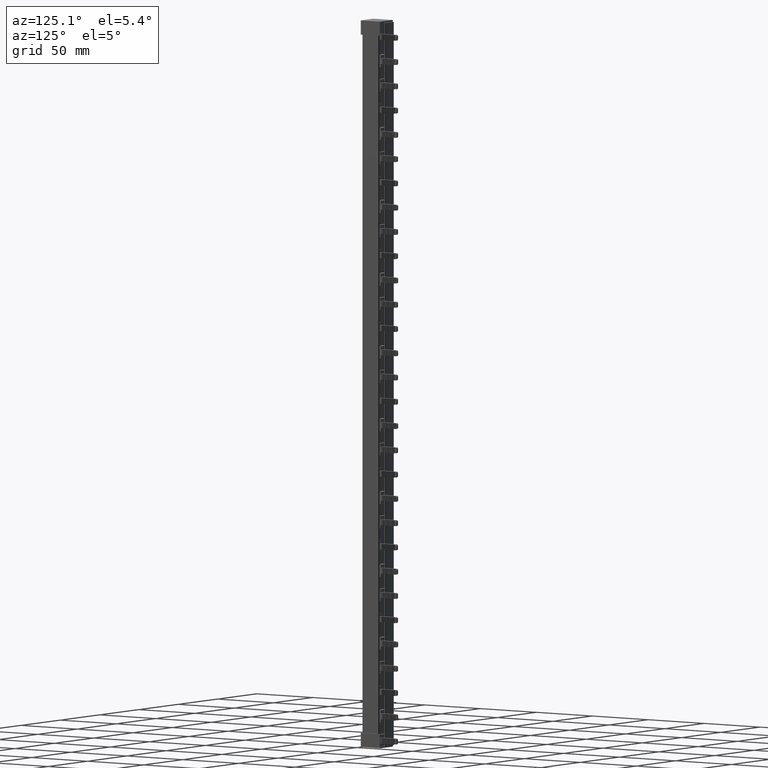
[diagram: clean part render]
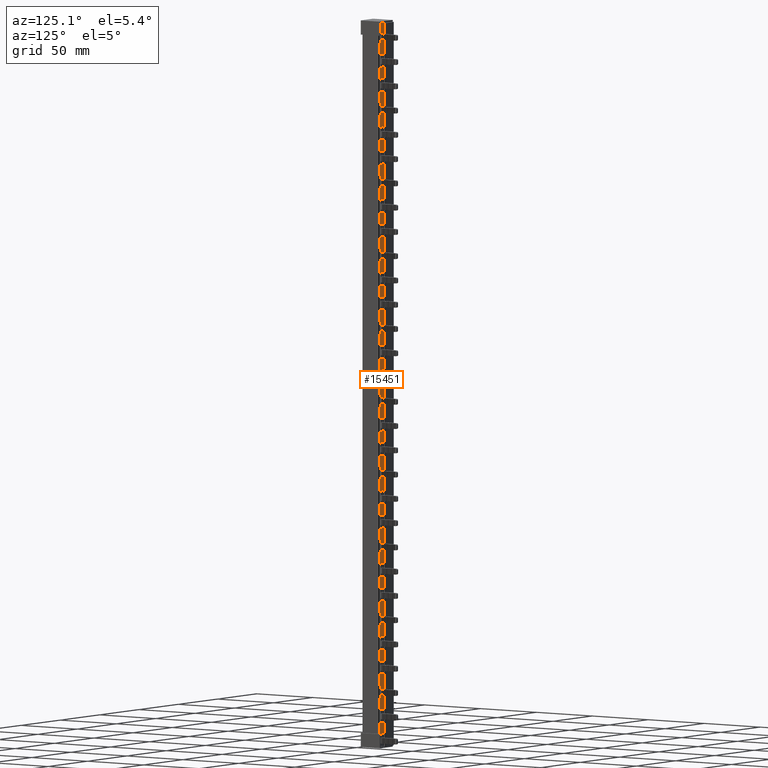
[diagram: same view with one face highlighted and labeled with its STEP entity id]
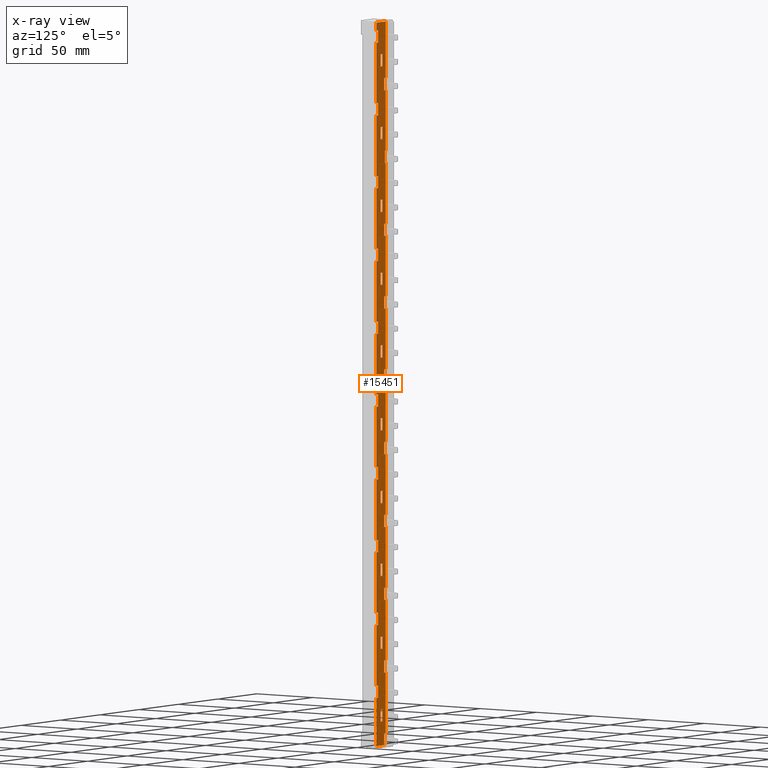
[diagram: x-ray of the same camera — body ghosted, the highlighted face saturated]
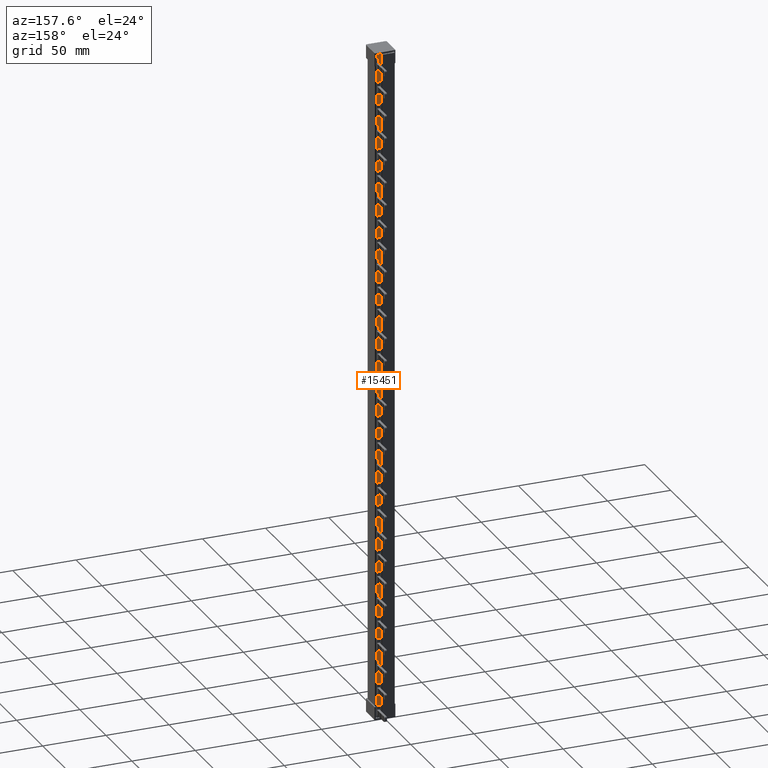
[diagram: same view with one face highlighted and labeled with its STEP entity id]
A machine part, auxiliary view. The second image highlights one B-rep face of the part: STEP entity #15451.
The next image is the same camera in x-ray: the body ghosted, the highlighted face saturated — about 0% of this face is hidden behind the body in this view.
A second angle (auxiliary view) of the same face is appended — the face is thin or edge-on in the first view.
In plain terms, the highlighted planar face has unit normal (0, -1, 0).
Its self-contained STEP definition (entity closure, byte-faithful):
#2302 = LINE ( 'NONE', #2323, #33137 ) ;
#2303 = LINE ( 'NONE', #2334, #33188 ) ;
#2306 = LINE ( 'NONE', #2332, #33132 ) ;
#2308 = LINE ( 'NONE', #2314, #33113 ) ;
#2309 = DIRECTION ( 'NONE',  ( 1.000000000000000000, -0.0000000000000000000, 0.0000000000000000000 ) ) ;
#2313 = DIRECTION ( 'NONE',  ( 1.000000000000000000, -0.0000000000000000000, 0.0000000000000000000 ) ) ;
#2314 = CARTESIAN_POINT ( 'NONE',  ( 12.35637477970041900, 11.89096289031699200, 96.07999999999999800 ) ) ;
#2316 = LINE ( 'NONE', #2317, #33203 ) ;
#2317 = CARTESIAN_POINT ( 'NONE',  ( 12.35637477970041900, 11.89096289031699200, 212.0799999999999800 ) ) ;
#2322 = CARTESIAN_POINT ( 'NONE',  ( 43.84999999999979500, 11.89096289031699300, -91.08999999999980400 ) ) ;
#2323 = CARTESIAN_POINT ( 'NONE',  ( 12.35637477970041900, 11.89096289031699200, -1.920000000000005000 ) ) ;
#2324 = DIRECTION ( 'NONE',  ( -1.000000000000000000, -0.0000000000000000000, 0.0000000000000000000 ) ) ;
#2325 = LINE ( 'NONE', #2328, #33197 ) ;
#2328 = CARTESIAN_POINT ( 'NONE',  ( 2.649999999999782300, 11.89096289031699300, 176.4100000000001700 ) ) ;
#2329 = DIRECTION ( 'NONE',  ( 1.000000000000000000, -0.0000000000000000000, 0.0000000000000000000 ) ) ;
#2332 = CARTESIAN_POINT ( 'NONE',  ( 12.35637477970041900, 11.89096289031699200, 204.0799999999999800 ) ) ;
#2333 = LINE ( 'NONE', #2322, #33162 ) ;
#2334 = CARTESIAN_POINT ( 'NONE',  ( 43.84999999999979500, 11.89096289031699300, -100.0899999999998200 ) ) ;
#2335 = DIRECTION ( 'NONE',  ( 0.0000000000000000000, 0.0000000000000000000, -1.000000000000000000 ) ) ;
#2336 = DIRECTION ( 'NONE',  ( -0.0000000000000000000, -0.0000000000000000000, -1.000000000000000000 ) ) ;
#2338 = LINE ( 'NONE', #2339, #33199 ) ;
#2339 = CARTESIAN_POINT ( 'NONE',  ( 12.35637477970041900, 11.89096289031699200, 51.57999999999999100 ) ) ;
#2340 = CARTESIAN_POINT ( 'NONE',  ( 0.7025472845186759900, 11.89096289031699300, -23.67529058223877300 ) ) ;
#2342 = DIRECTION ( 'NONE',  ( -1.000000000000000000, -0.0000000000000000000, 0.0000000000000000000 ) ) ;
#2344 = DIRECTION ( 'NONE',  ( 1.000000000000000000, -0.0000000000000000000, 0.0000000000000000000 ) ) ;
#2345 = LINE ( 'NONE', #2340, #33122 ) ;
#2352 = DIRECTION ( 'NONE',  ( 0.0000000000000000000, 0.0000000000000000000, 1.000000000000000000 ) ) ;
#2357 = LINE ( 'NONE', #2359, #33179 ) ;
#2358 = DIRECTION ( 'NONE',  ( 0.0000000000000000000, 0.0000000000000000000, 1.000000000000000000 ) ) ;
#2359 = CARTESIAN_POINT ( 'NONE',  ( 10.35637477970041700, 11.89096289031699200, 204.0799999999999800 ) ) ;
#2363 = LINE ( 'NONE', #2370, #33149 ) ;
#2370 = CARTESIAN_POINT ( 'NONE',  ( 0.7025472845186759900, 11.89096289031699300, -291.1752905822388000 ) ) ;
#2374 = LINE ( 'NONE', #2381, #33201 ) ;
#2377 = DIRECTION ( 'NONE',  ( -0.0000000000000000000, -0.0000000000000000000, -1.000000000000000000 ) ) ;
#2381 = CARTESIAN_POINT ( 'NONE',  ( 2.649999999999782300, 11.89096289031699300, 69.41000000000018100 ) ) ;
#2386 = LINE ( 'NONE', #2410, #33284 ) ;
#2405 = LINE ( 'NONE', #2406, #33227 ) ;
#2406 = CARTESIAN_POINT ( 'NONE',  ( 10.35637477970041700, 11.89096289031699200, 150.5799999999999800 ) ) ;
#2409 = DIRECTION ( 'NONE',  ( -0.0000000000000000000, -0.0000000000000000000, 1.000000000000000000 ) ) ;
#2410 = CARTESIAN_POINT ( 'NONE',  ( 43.84999999999979500, 11.89096289031699300, -260.5899999999998000 ) ) ;
#2414 = DIRECTION ( 'NONE',  ( -0.0000000000000000000, -0.0000000000000000000, 1.000000000000000000 ) ) ;
#2417 = LINE ( 'NONE', #2436, #33264 ) ;
#2428 = DIRECTION ( 'NONE',  ( -1.000000000000000000, -0.0000000000000000000, 0.0000000000000000000 ) ) ;
#2432 = CARTESIAN_POINT ( 'NONE',  ( 10.35637477970041700, 11.89096289031699200, 204.0799999999999800 ) ) ;
#2434 = DIRECTION ( 'NONE',  ( -0.0000000000000000000, -0.0000000000000000000, 1.000000000000000000 ) ) ;
#2436 = CARTESIAN_POINT ( 'NONE',  ( 12.35637477970041900, 11.89096289031699200, 149.5799999999999800 ) ) ;
#2437 = DIRECTION ( 'NONE',  ( -1.000000000000000000, -0.0000000000000000000, 0.0000000000000000000 ) ) ;
#2443 = LINE ( 'NONE', #2432, #33273 ) ;
#2449 = DIRECTION ( 'NONE',  ( -0.0000000000000000000, -0.0000000000000000000, 1.000000000000000000 ) ) ;
#2450 = DIRECTION ( 'NONE',  ( 0.0000000000000000000, 0.0000000000000000000, -1.000000000000000000 ) ) ;
#2455 = LINE ( 'NONE', #2458, #33214 ) ;
#2456 = LINE ( 'NONE', #2472, #33320 ) ;
#2458 = CARTESIAN_POINT ( 'NONE',  ( 0.7025472845186759900, 11.89096289031699300, -130.6752905822387400 ) ) ;
#2459 = DIRECTION ( 'NONE',  ( 0.0000000000000000000, 0.0000000000000000000, 1.000000000000000000 ) ) ;
#2462 = LINE ( 'NONE', #2514, #33224 ) ;
#2463 = LINE ( 'NONE', #2500, #33313 ) ;
#2467 = CARTESIAN_POINT ( 'NONE',  ( 10.35637477970041700, 11.89096289031699200, 204.0799999999999800 ) ) ;
#2468 = DIRECTION ( 'NONE',  ( -0.0000000000000000000, -0.0000000000000000000, 1.000000000000000000 ) ) ;
#2471 = CARTESIAN_POINT ( 'NONE',  ( 12.35637477970041900, 11.89096289031699200, 203.0799999999999800 ) ) ;
#2472 = CARTESIAN_POINT ( 'NONE',  ( 10.35637477970041700, 11.89096289031699200, 204.0799999999999800 ) ) ;
#2473 = LINE ( 'NONE', #2467, #33288 ) ;
#2476 = CARTESIAN_POINT ( 'NONE',  ( 12.35637477970041900, 11.89096289031699200, 204.0799999999999800 ) ) ;
#2482 = DIRECTION ( 'NONE',  ( -1.000000000000000000, -0.0000000000000000000, 0.0000000000000000000 ) ) ;
#2486 = LINE ( 'NONE', #2476, #33316 ) ;
#2493 = LINE ( 'NONE', #2471, #33255 ) ;
#2500 = CARTESIAN_POINT ( 'NONE',  ( 43.84999999999979500, 11.89096289031699300, 6.910000000000175100 ) ) ;
#2509 = DIRECTION ( 'NONE',  ( 1.000000000000000000, -0.0000000000000000000, 0.0000000000000000000 ) ) ;
#2514 = CARTESIAN_POINT ( 'NONE',  ( 12.35637477970041900, 11.89096289031699200, 105.0800000000000300 ) ) ;
#2533 = DIRECTION ( 'NONE',  ( -1.000000000000000000, -0.0000000000000000000, 0.0000000000000000000 ) ) ;
#2535 = LINE ( 'NONE', #2545, #33296 ) ;
#2545 = CARTESIAN_POINT ( 'NONE',  ( 43.84999999999979500, 11.89096289031699300, 15.91000000000018500 ) ) ;
#2564 = DIRECTION ( 'NONE',  ( 1.000000000000000000, -0.0000000000000000000, 0.0000000000000000000 ) ) ;
#2591 = DIRECTION ( 'NONE',  ( 1.000000000000000000, -0.0000000000000000000, 0.0000000000000000000 ) ) ;
#2593 = LINE ( 'NONE', #2604, #33145 ) ;
#2595 = CARTESIAN_POINT ( 'NONE',  ( 12.35637477970041900, 11.89096289031699200, 150.5799999999999800 ) ) ;
#2598 = DIRECTION ( 'NONE',  ( 0.0000000000000000000, 0.0000000000000000000, -1.000000000000000000 ) ) ;
#2602 = CARTESIAN_POINT ( 'NONE',  ( 12.35637477970041900, 11.89096289031699200, 204.0799999999999800 ) ) ;
#2604 = CARTESIAN_POINT ( 'NONE',  ( 2.649999999999782300, 11.89096289031699300, -91.08999999999983300 ) ) ;
#2607 = DIRECTION ( 'NONE',  ( 0.0000000000000000000, 0.0000000000000000000, -1.000000000000000000 ) ) ;
#2610 = LINE ( 'NONE', #2615, #33418 ) ;
#2615 = CARTESIAN_POINT ( 'NONE',  ( 12.35637477970041900, 11.89096289031699200, 158.5800000000000100 ) ) ;
#2618 = LINE ( 'NONE', #2602, #43262 ) ;
#2623 = DIRECTION ( 'NONE',  ( -0.0000000000000000000, -0.0000000000000000000, -1.000000000000000000 ) ) ;
#2624 = LINE ( 'NONE', #2632, #33443 ) ;
#2630 = DIRECTION ( 'NONE',  ( -1.000000000000000000, -0.0000000000000000000, 0.0000000000000000000 ) ) ;
#2632 = CARTESIAN_POINT ( 'NONE',  ( 12.35637477970041900, 11.89096289031699200, -10.92000000000001200 ) ) ;
#2635 = LINE ( 'NONE', #2595, #43269 ) ;
#2637 = LINE ( 'NONE', #2646, #42410 ) ;
#2639 = CARTESIAN_POINT ( 'NONE',  ( 12.35637477970041900, 11.89096289031699200, 42.57999999999998400 ) ) ;
#2642 = DIRECTION ( 'NONE',  ( 0.0000000000000000000, 0.0000000000000000000, -1.000000000000000000 ) ) ;
#2646 = CARTESIAN_POINT ( 'NONE',  ( 12.35637477970041900, 11.89096289031699200, 204.0799999999999800 ) ) ;
#2676 = LINE ( 'NONE', #2639, #42399 ) ;
#2678 = DIRECTION ( 'NONE',  ( -1.000000000000000000, -0.0000000000000000000, 0.0000000000000000000 ) ) ;
#2692 = LINE ( 'NONE', #2702, #42398 ) ;
#2702 = CARTESIAN_POINT ( 'NONE',  ( 43.84999999999979500, 11.89096289031699300, -251.5899999999998000 ) ) ;
#2722 = DIRECTION ( 'NONE',  ( 1.000000000000000000, -0.0000000000000000000, 0.0000000000000000000 ) ) ;
#5729 = FACE_BOUND ( 'NONE', #30707, .T. ) ;
#5731 = FACE_OUTER_BOUND ( 'NONE', #30724, .T. ) ;
#5732 = FACE_BOUND ( 'NONE', #30757, .T. ) ;
#5735 = FACE_BOUND ( 'NONE', #30756, .T. ) ;
#5737 = PLANE ( 'NONE',  #45331 ) ;
#5738 = DIRECTION ( 'NONE',  ( 0.0000000000000000000, -1.000000000000000000, 0.0000000000000000000 ) ) ;
#5739 = DIRECTION ( 'NONE',  ( 0.0000000000000000000, -0.0000000000000000000, -1.000000000000000000 ) ) ;
#5741 = FACE_BOUND ( 'NONE', #30742, .T. ) ;
#5743 = FACE_BOUND ( 'NONE', #30755, .T. ) ;
#5744 = FACE_BOUND ( 'NONE', #30711, .T. ) ;
#5745 = FACE_BOUND ( 'NONE', #30732, .T. ) ;
#5746 = FACE_BOUND ( 'NONE', #30741, .T. ) ;
#5747 = FACE_BOUND ( 'NONE', #30710, .T. ) ;
#5748 = FACE_BOUND ( 'NONE', #30720, .T. ) ;
#5749 = FACE_BOUND ( 'NONE', #30736, .T. ) ;
#5750 = FACE_BOUND ( 'NONE', #30752, .T. ) ;
#5752 = FACE_BOUND ( 'NONE', #30703, .T. ) ;
#5754 = FACE_BOUND ( 'NONE', #30705, .T. ) ;
#5755 = FACE_BOUND ( 'NONE', #30719, .T. ) ;
#5756 = FACE_BOUND ( 'NONE', #30778, .T. ) ;
#5758 = FACE_BOUND ( 'NONE', #30750, .T. ) ;
#5760 = FACE_BOUND ( 'NONE', #30716, .T. ) ;
#5761 = FACE_BOUND ( 'NONE', #30738, .T. ) ;
#5764 = FACE_BOUND ( 'NONE', #30740, .T. ) ;
#5766 = CARTESIAN_POINT ( 'NONE',  ( -0.09745271548132397600, 11.89096289031699300, -315.0100000000000500 ) ) ;
#5769 = FACE_BOUND ( 'NONE', #30754, .T. ) ;
#5772 = FACE_BOUND ( 'NONE', #30728, .T. ) ;
#5779 = FACE_BOUND ( 'NONE', #30735, .T. ) ;
#5780 = FACE_BOUND ( 'NONE', #30733, .T. ) ;
#5782 = FACE_BOUND ( 'NONE', #30753, .T. ) ;
#5783 = FACE_BOUND ( 'NONE', #30737, .T. ) ;
#5784 = FACE_BOUND ( 'NONE', #30734, .T. ) ;
#5786 = FACE_BOUND ( 'NONE', #30709, .T. ) ;
#10337 = CARTESIAN_POINT ( 'NONE',  ( 7.150000000000009200, 11.89096289031699200, -19.75499999999971500 ) ) ;
#10339 = CARTESIAN_POINT ( 'NONE',  ( 0.7025472845186763200, 11.89096289031699300, -37.58999999999981900 ) ) ;
#10340 = CARTESIAN_POINT ( 'NONE',  ( 7.150000000000009200, 11.89096289031699200, -73.25499999999971100 ) ) ;
#10345 = CARTESIAN_POINT ( 'NONE',  ( 2.649999999999784100, 11.89096289031699300, -207.0899999999998300 ) ) ;
#10347 = CARTESIAN_POINT ( 'NONE',  ( 7.150000000000014600, 11.89096289031699000, 87.24500000000028900 ) ) ;
#10349 = CARTESIAN_POINT ( 'NONE',  ( 1.849999999999782500, 11.89096289031699200, 122.9100000000001800 ) ) ;
#10360 = CARTESIAN_POINT ( 'NONE',  ( 7.150000000000009200, 11.89096289031699200, -28.75499999999970400 ) ) ;
#10362 = CARTESIAN_POINT ( 'NONE',  ( 7.150000000000009200, 11.89096289031699200, -126.7549999999997300 ) ) ;
#10364 = CARTESIAN_POINT ( 'NONE',  ( 0.7025472845186763200, 11.89096289031699300, -207.0899999999998300 ) ) ;
#10365 = CARTESIAN_POINT ( 'NONE',  ( 0.7025472845186763200, 11.89096289031699300, -144.5899999999998300 ) ) ;
#10367 = CARTESIAN_POINT ( 'NONE',  ( 7.150000000000009200, 11.89096289031699200, -180.2549999999997100 ) ) ;
#10371 = CARTESIAN_POINT ( 'NONE',  ( 0.7025472845186763200, 11.89096289031699300, -198.0899999999998600 ) ) ;
#10373 = CARTESIAN_POINT ( 'NONE',  ( 10.35637477970041700, 11.89096289031699200, 105.0800000000000300 ) ) ;
#10375 = CARTESIAN_POINT ( 'NONE',  ( 0.6259999999999174000, 11.89096289031699200, 122.9100000000001800 ) ) ;
#10378 = CARTESIAN_POINT ( 'NONE',  ( 5.150000000000246400, 11.89096289031699200, -242.7549999999997100 ) ) ;
#10380 = CARTESIAN_POINT ( 'NONE',  ( 2.649999999999784100, 11.89096289031699300, -153.5899999999998300 ) ) ;
#10382 = CARTESIAN_POINT ( 'NONE',  ( 5.150000000000241100, 11.89096289031699200, -233.7549999999997100 ) ) ;
#10384 = CARTESIAN_POINT ( 'NONE',  ( 7.150000000000009200, 11.89096289031699200, -242.7549999999997100 ) ) ;
#10386 = CARTESIAN_POINT ( 'NONE',  ( 7.150000000000014600, 11.89096289031699200, 78.24500000000028900 ) ) ;
#10396 = CARTESIAN_POINT ( 'NONE',  ( 10.35637477970041700, 11.89096289031699200, 203.0799999999999800 ) ) ;
#10404 = CARTESIAN_POINT ( 'NONE',  ( 0.7025472845186763200, 11.89096289031699300, 167.4100000000001700 ) ) ;
#10407 = CARTESIAN_POINT ( 'NONE',  ( 1.849999999999782500, 11.89096289031699200, 113.9100000000001800 ) ) ;
#10409 = CARTESIAN_POINT ( 'NONE',  ( 12.35637477970041900, 11.89096289031699200, -64.42000000000000200 ) ) ;
#10410 = CARTESIAN_POINT ( 'NONE',  ( 0.7025472845186763200, 11.89096289031699300, 69.41000000000019600 ) ) ;
#10412 = CARTESIAN_POINT ( 'NONE',  ( 0.7025472845186762100, 11.89096289031699300, -313.8000000000000700 ) ) ;
#10416 = CARTESIAN_POINT ( 'NONE',  ( 2.649999999999782300, 11.89096289031699300, -313.8000000000553800 ) ) ;
#10417 = CARTESIAN_POINT ( 'NONE',  ( 7.150000000000009200, 11.89096289031699200, -189.2549999999998000 ) ) ;
#10423 = CARTESIAN_POINT ( 'NONE',  ( 2.649999999999782800, 11.89096289031699300, -144.5899999999998300 ) ) ;
#10424 = CARTESIAN_POINT ( 'NONE',  ( 10.35637477970041700, 11.89096289031699200, -64.42000000000000200 ) ) ;
#10427 = CARTESIAN_POINT ( 'NONE',  ( 12.42637477970043300, 11.89096289031699300, -313.8000000000524200 ) ) ;
#10429 = CARTESIAN_POINT ( 'NONE',  ( 2.649999999999782800, 11.89096289031699300, -198.0899999999998600 ) ) ;
#10431 = CARTESIAN_POINT ( 'NONE',  ( 5.150000000000246400, 11.89096289031699200, 78.24500000000028900 ) ) ;
#10433 = CARTESIAN_POINT ( 'NONE',  ( 5.150000000000246400, 11.89096289031699200, -189.2549999999997400 ) ) ;
#10436 = CARTESIAN_POINT ( 'NONE',  ( 5.150000000000241100, 11.89096289031699200, -126.7549999999997300 ) ) ;
#10439 = CARTESIAN_POINT ( 'NONE',  ( 0.7025472845186763200, 11.89096289031699300, -46.58999999999982600 ) ) ;
#10441 = CARTESIAN_POINT ( 'NONE',  ( 2.649999999999784100, 11.89096289031699300, 167.4100000000001700 ) ) ;
#10443 = CARTESIAN_POINT ( 'NONE',  ( 5.150000000000241100, 11.89096289031699200, -180.2549999999997100 ) ) ;
#10449 = CARTESIAN_POINT ( 'NONE',  ( 7.150000000000009200, 11.89096289031699200, -135.7549999999997400 ) ) ;
#10452 = CARTESIAN_POINT ( 'NONE',  ( 10.35637477970041700, 11.89096289031699200, 51.57999999999998400 ) ) ;
#10453 = CARTESIAN_POINT ( 'NONE',  ( 5.150000000000243700, 11.89096289031699200, -73.25499999999972500 ) ) ;
#10457 = CARTESIAN_POINT ( 'NONE',  ( 2.649999999999782800, 11.89096289031699300, -305.0899999999998600 ) ) ;
#10459 = CARTESIAN_POINT ( 'NONE',  ( 2.649999999999784100, 11.89096289031699300, 69.41000000000019600 ) ) ;
#10461 = CARTESIAN_POINT ( 'NONE',  ( 5.150000000000246400, 11.89096289031699200, -82.25499999999971100 ) ) ;
#10463 = CARTESIAN_POINT ( 'NONE',  ( 0.7025472845186758700, 11.89096289031699300, 176.4100000000001700 ) ) ;
#10465 = CARTESIAN_POINT ( 'NONE',  ( 0.6259999999999176200, 11.89096289031699200, 217.8000000000291700 ) ) ;
#10467 = CARTESIAN_POINT ( 'NONE',  ( 5.150000000000243700, 11.89096289031699200, -19.75499999999972500 ) ) ;
#10469 = CARTESIAN_POINT ( 'NONE',  ( 5.150000000000241100, 11.89096289031699200, -287.2549999999997100 ) ) ;
#10472 = CARTESIAN_POINT ( 'NONE',  ( 7.150000000000009200, 11.89096289031699200, 140.7450000000002900 ) ) ;
#10475 = CARTESIAN_POINT ( 'NONE',  ( 10.35637477970041700, 11.89096289031699200, -117.9200000000000600 ) ) ;
#10477 = CARTESIAN_POINT ( 'NONE',  ( 12.42637477970043300, 11.89096289031699300, 217.8000000000262200 ) ) ;
#10479 = CARTESIAN_POINT ( 'NONE',  ( 2.649999999999782800, 11.89096289031699300, 176.4100000000001700 ) ) ;
#10481 = CARTESIAN_POINT ( 'NONE',  ( 2.649999999999782800, 11.89096289031699300, -251.5899999999998600 ) ) ;
#10482 = CARTESIAN_POINT ( 'NONE',  ( 0.7025472845186763200, 11.89096289031699300, 15.91000000000018800 ) ) ;
#10484 = CARTESIAN_POINT ( 'NONE',  ( 10.35637477970041700, 11.89096289031699200, 96.07999999999999800 ) ) ;
#10486 = CARTESIAN_POINT ( 'NONE',  ( 12.35637477970041900, 11.89096289031699200, -215.9200000000000200 ) ) ;
#10487 = CARTESIAN_POINT ( 'NONE',  ( 10.35637477970041700, 11.89096289031699200, -10.92000000000001200 ) ) ;
#10489 = CARTESIAN_POINT ( 'NONE',  ( 10.35637477970041700, 11.89096289031699200, -55.42000000000000900 ) ) ;
#10491 = CARTESIAN_POINT ( 'NONE',  ( 12.35637477970041900, 11.89096289031699200, 203.0799999999999800 ) ) ;
#10493 = CARTESIAN_POINT ( 'NONE',  ( 10.35637477970041700, 11.89096289031699200, -278.4200000000000200 ) ) ;
#10495 = CARTESIAN_POINT ( 'NONE',  ( 7.150000000000009200, 11.89096289031699200, 131.7450000000002900 ) ) ;
#10497 = CARTESIAN_POINT ( 'NONE',  ( 10.35637477970041700, 11.89096289031699200, 212.0799999999999800 ) ) ;
#10499 = CARTESIAN_POINT ( 'NONE',  ( 0.7025472845186763200, 11.89096289031699300, -153.5899999999998300 ) ) ;
#10501 = CARTESIAN_POINT ( 'NONE',  ( 7.150000000000009200, 11.89096289031699200, -287.2549999999997100 ) ) ;
#10502 = CARTESIAN_POINT ( 'NONE',  ( 12.35637477970041900, 11.89096289031699200, -1.920000000000005000 ) ) ;
#10504 = CARTESIAN_POINT ( 'NONE',  ( 5.150000000000270400, 11.89096289031699200, 194.2450000000002900 ) ) ;
#10506 = CARTESIAN_POINT ( 'NONE',  ( 10.35637477970041700, 11.89096289031699200, -108.9200000000000200 ) ) ;
#10508 = CARTESIAN_POINT ( 'NONE',  ( 12.35637477970041900, 11.89096289031699200, 96.07999999999999800 ) ) ;
#10509 = CARTESIAN_POINT ( 'NONE',  ( 7.150000000000009200, 11.89096289031699200, -82.25499999999971100 ) ) ;
#10510 = CARTESIAN_POINT ( 'NONE',  ( 7.150000000000007500, 11.89096289031699200, 194.2450000000002900 ) ) ;
#10512 = CARTESIAN_POINT ( 'NONE',  ( 0.7025472845186763200, 11.89096289031699300, -305.0899999999998000 ) ) ;
#10514 = CARTESIAN_POINT ( 'NONE',  ( 2.649999999999784100, 11.89096289031699300, 60.41000000000018800 ) ) ;
#10516 = CARTESIAN_POINT ( 'NONE',  ( 5.150000000000246400, 11.89096289031699200, -28.75499999999970400 ) ) ;
#10519 = CARTESIAN_POINT ( 'NONE',  ( 10.35637477970041700, 11.89096289031699200, -162.4200000000000200 ) ) ;
#10522 = CARTESIAN_POINT ( 'NONE',  ( 5.150000000000241100, 11.89096289031699200, 140.7450000000002900 ) ) ;
#10524 = CARTESIAN_POINT ( 'NONE',  ( 12.35637477970041900, 11.89096289031699200, -269.4200000000000700 ) ) ;
#10527 = CARTESIAN_POINT ( 'NONE',  ( 5.150000000000246400, 11.89096289031699200, 131.7450000000002900 ) ) ;
#10529 = CARTESIAN_POINT ( 'NONE',  ( 10.35637477970041700, 11.89096289031699200, 158.5800000000000100 ) ) ;
#10530 = CARTESIAN_POINT ( 'NONE',  ( 7.150000000000009200, 11.89096289031699200, -233.7549999999997100 ) ) ;
#10532 = CARTESIAN_POINT ( 'NONE',  ( 5.150000000000246400, 11.89096289031699200, -135.7549999999997400 ) ) ;
#10534 = CARTESIAN_POINT ( 'NONE',  ( 5.150000000000246400, 11.89096289031699200, -296.2549999999997100 ) ) ;
#10535 = CARTESIAN_POINT ( 'NONE',  ( 0.7025472845186763200, 11.89096289031699300, 60.41000000000018800 ) ) ;
#10537 = CARTESIAN_POINT ( 'NONE',  ( 0.7025472845186763200, 11.89096289031699300, -91.08999999999980400 ) ) ;
#10539 = CARTESIAN_POINT ( 'NONE',  ( 12.35637477970041900, 11.89096289031699200, 212.0799999999999800 ) ) ;
#10541 = CARTESIAN_POINT ( 'NONE',  ( 10.35637477970041700, 11.89096289031699200, -215.9200000000000200 ) ) ;
#10543 = CARTESIAN_POINT ( 'NONE',  ( 2.649999999999782800, 11.89096289031699300, 15.91000000000017800 ) ) ;
#10545 = CARTESIAN_POINT ( 'NONE',  ( 12.35637477970041900, 11.89096289031699200, 158.5800000000000100 ) ) ;
#10547 = CARTESIAN_POINT ( 'NONE',  ( 7.150000000000014600, 11.89096289031699200, 24.74500000000028200 ) ) ;
#10553 = CARTESIAN_POINT ( 'NONE',  ( 2.649999999999782800, 11.89096289031699300, -37.58999999999981900 ) ) ;
#10555 = CARTESIAN_POINT ( 'NONE',  ( 12.35637477970041900, 11.89096289031699200, -224.9200000000000400 ) ) ;
#10557 = CARTESIAN_POINT ( 'NONE',  ( 12.35637477970041900, 11.89096289031699200, 42.57999999999997700 ) ) ;
#10558 = CARTESIAN_POINT ( 'NONE',  ( 2.649999999999784100, 11.89096289031699300, -46.58999999999982600 ) ) ;
#10560 = CARTESIAN_POINT ( 'NONE',  ( 0.6259999999999176200, 11.89096289031699200, 113.9100000000001800 ) ) ;
#10562 = CARTESIAN_POINT ( 'NONE',  ( 7.150000000000009200, 11.89096289031699200, 33.74500000000028200 ) ) ;
#10564 = CARTESIAN_POINT ( 'NONE',  ( 12.35637477970041900, 11.89096289031699200, 105.0800000000000300 ) ) ;
#10568 = CARTESIAN_POINT ( 'NONE',  ( 10.35637477970041700, 11.89096289031699200, -269.4200000000000700 ) ) ;
#10570 = CARTESIAN_POINT ( 'NONE',  ( 10.35637477970041700, 11.89096289031699200, 149.5799999999999800 ) ) ;
#10571 = CARTESIAN_POINT ( 'NONE',  ( 2.649999999999782800, 11.89096289031699300, -91.08999999999980400 ) ) ;
#10573 = CARTESIAN_POINT ( 'NONE',  ( 12.35637477970041900, 11.89096289031699200, -117.9200000000000600 ) ) ;
#10575 = CARTESIAN_POINT ( 'NONE',  ( 0.7025472845186763200, 11.89096289031699300, -251.5899999999998000 ) ) ;
#10577 = CARTESIAN_POINT ( 'NONE',  ( 5.150000000000130000, 11.89096289031699200, 24.74500000000028200 ) ) ;
#10579 = CARTESIAN_POINT ( 'NONE',  ( 5.150000000000246400, 11.89096289031699200, 185.2450000000002600 ) ) ;
#10581 = CARTESIAN_POINT ( 'NONE',  ( 0.6259999999999141800, 11.89096289031699200, -313.8000000000291700 ) ) ;
#10583 = CARTESIAN_POINT ( 'NONE',  ( 10.35637477970041700, 11.89096289031699200, -171.4200000000000200 ) ) ;
#10585 = CARTESIAN_POINT ( 'NONE',  ( 12.35637477970041900, 11.89096289031699200, -108.9200000000000200 ) ) ;
#10587 = CARTESIAN_POINT ( 'NONE',  ( 0.7025472845186763200, 11.89096289031699300, -100.0899999999998200 ) ) ;
#10589 = CARTESIAN_POINT ( 'NONE',  ( 2.649999999999784100, 11.89096289031699300, -100.0899999999998200 ) ) ;
#10591 = CARTESIAN_POINT ( 'NONE',  ( 12.35637477970041900, 11.89096289031699200, -162.4200000000000200 ) ) ;
#10595 = CARTESIAN_POINT ( 'NONE',  ( 5.150000000000241100, 11.89096289031699200, 87.24500000000028900 ) ) ;
#10604 = CARTESIAN_POINT ( 'NONE',  ( 7.150000000000009200, 11.89096289031699200, -296.2549999999997100 ) ) ;
#10623 = CARTESIAN_POINT ( 'NONE',  ( 0.7025472845186763200, 11.89096289031699300, -260.5899999999998600 ) ) ;
#10627 = CARTESIAN_POINT ( 'NONE',  ( 10.35637477970041700, 11.89096289031699200, -224.9200000000000400 ) ) ;
#10629 = CARTESIAN_POINT ( 'NONE',  ( 7.150000000000014600, 11.89096289031699200, 185.2450000000002600 ) ) ;
#10631 = CARTESIAN_POINT ( 'NONE',  ( 12.35637477970041900, 11.89096289031699200, 51.57999999999998400 ) ) ;
#10633 = CARTESIAN_POINT ( 'NONE',  ( 12.35637477970041900, 11.89096289031699200, -55.42000000000000900 ) ) ;
#10635 = CARTESIAN_POINT ( 'NONE',  ( 12.35637477970041900, 11.89096289031699200, -10.92000000000001200 ) ) ;
#10647 = CARTESIAN_POINT ( 'NONE',  ( 2.649999999999784100, 11.89096289031699300, -260.5899999999998000 ) ) ;
#10661 = CARTESIAN_POINT ( 'NONE',  ( 5.150000000000243700, 11.89096289031699200, 33.74500000000027500 ) ) ;
#10665 = CARTESIAN_POINT ( 'NONE',  ( 12.35637477970041900, 11.89096289031699200, -171.4200000000000200 ) ) ;
#10673 = CARTESIAN_POINT ( 'NONE',  ( 10.35637477970041700, 11.89096289031699200, 42.57999999999997700 ) ) ;
#10675 = CARTESIAN_POINT ( 'NONE',  ( 10.35637477970041700, 11.89096289031699200, -1.920000000000005000 ) ) ;
#10695 = CARTESIAN_POINT ( 'NONE',  ( 12.35637477970041900, 11.89096289031699200, 149.5799999999999800 ) ) ;
#10697 = CARTESIAN_POINT ( 'NONE',  ( 12.35637477970041900, 11.89096289031699200, -278.4200000000000200 ) ) ;
#10717 = CARTESIAN_POINT ( 'NONE',  ( 2.649999999999784100, 11.89096289031699300, 6.910000000000173300 ) ) ;
#10810 = CARTESIAN_POINT ( 'NONE',  ( 0.7025472845186763200, 11.89096289031699300, 6.910000000000171600 ) ) ;
#15451 = ADVANCED_FACE ( 'NONE', ( #5731, #5758, #5745, #5741, #5761, #5744, #5764, #5746, #5754, #5755, #5783, #5747, #5772, #5784, #5786, #5752, #5769, #5748, #5779, #5749, #5750, #5732, #5782, #5743, #5735, #5756, #5760, #5780, #5729 ), #5737, .F. ) ;
#30703 = EDGE_LOOP ( 'NONE', ( #34416, #34348, #34392, #34355 ) ) ;
#30705 = EDGE_LOOP ( 'NONE', ( #34415, #34323, #34359, #34304 ) ) ;
#30707 = EDGE_LOOP ( 'NONE', ( #34388, #34439, #34367, #34425 ) ) ;
#30709 = EDGE_LOOP ( 'NONE', ( #34405, #34335, #34342, #34324 ) ) ;
#30710 = EDGE_LOOP ( 'NONE', ( #34397, #34361, #34350, #34395 ) ) ;
#30711 = EDGE_LOOP ( 'NONE', ( #34309, #34354, #34360, #34322 ) ) ;
#30716 = EDGE_LOOP ( 'NONE', ( #34399, #34488, #34369, #34386 ) ) ;
#30719 = EDGE_LOOP ( 'NONE', ( #34393, #34319, #34351, #34414 ) ) ;
#30720 = EDGE_LOOP ( 'NONE', ( #34407, #34401, #34390, #34332 ) ) ;
#30724 = EDGE_LOOP ( 'NONE', ( #34306, #34273, #34311, #34339, #34326, #34305, #34299, #34321, #34331, #34303, #34275, #34300 ) ) ;
#30728 = EDGE_LOOP ( 'NONE', ( #34411, #34301, #34343, #34398 ) ) ;
#30732 = EDGE_LOOP ( 'NONE', ( #34346, #34325, #34344, #34341 ) ) ;
#30733 = EDGE_LOOP ( 'NONE', ( #34424, #34489, #34468, #34387 ) ) ;
#30734 = EDGE_LOOP ( 'NONE', ( #34378, #34312, #34313, #34356 ) ) ;
#30735 = EDGE_LOOP ( 'NONE', ( #34412, #34377, #34347, #34394 ) ) ;
#30736 = EDGE_LOOP ( 'NONE', ( #34298, #34317, #34374, #34381 ) ) ;
#30737 = EDGE_LOOP ( 'NONE', ( #34410, #34404, #34340, #34327 ) ) ;
#30738 = EDGE_LOOP ( 'NONE', ( #34329, #34308, #34307, #34345 ) ) ;
#30740 = EDGE_LOOP ( 'NONE', ( #34391, #34333, #34318, #34315 ) ) ;
#30741 = EDGE_LOOP ( 'NONE', ( #34406, #34320, #34376, #34389 ) ) ;
#30742 = EDGE_LOOP ( 'NONE', ( #34357, #34353, #34310, #34330 ) ) ;
#30750 = EDGE_LOOP ( 'NONE', ( #34328, #34337, #34316, #34334 ) ) ;
#30752 = EDGE_LOOP ( 'NONE', ( #34358, #34349, #34336, #34302 ) ) ;
#30753 = EDGE_LOOP ( 'NONE', ( #34444, #34427, #34419, #34453 ) ) ;
#30754 = EDGE_LOOP ( 'NONE', ( #34365, #34352, #34314, #34396 ) ) ;
#30755 = EDGE_LOOP ( 'NONE', ( #34423, #34366, #34383, #34474 ) ) ;
#30756 = EDGE_LOOP ( 'NONE', ( #34368, #34470, #34373, #34426 ) ) ;
#30757 = EDGE_LOOP ( 'NONE', ( #34338, #34452, #34432, #34436 ) ) ;
#30778 = EDGE_LOOP ( 'NONE', ( #34479, #34409, #34402, #34437 ) ) ;
#33113 = VECTOR ( 'NONE', #2342, 1000.000000000000000 ) ;
#33122 = VECTOR ( 'NONE', #2352, 1000.000000000000000 ) ;
#33132 = VECTOR ( 'NONE', #2335, 1000.000000000000000 ) ;
#33137 = VECTOR ( 'NONE', #2309, 1000.000000000000000 ) ;
#33145 = VECTOR ( 'NONE', #2623, 1000.000000000000000 ) ;
#33149 = VECTOR ( 'NONE', #2358, 1000.000000000000000 ) ;
#33162 = VECTOR ( 'NONE', #2329, 1000.000000000000000 ) ;
#33179 = VECTOR ( 'NONE', #2409, 1000.000000000000000 ) ;
#33188 = VECTOR ( 'NONE', #2324, 1000.000000000000000 ) ;
#33197 = VECTOR ( 'NONE', #2336, 1000.000000000000000 ) ;
#33199 = VECTOR ( 'NONE', #2344, 1000.000000000000000 ) ;
#33201 = VECTOR ( 'NONE', #2377, 1000.000000000000000 ) ;
#33203 = VECTOR ( 'NONE', #2313, 1000.000000000000000 ) ;
#33214 = VECTOR ( 'NONE', #2459, 1000.000000000000000 ) ;
#33224 = VECTOR ( 'NONE', #2509, 1000.000000000000000 ) ;
#33227 = VECTOR ( 'NONE', #2434, 1000.000000000000000 ) ;
#33255 = VECTOR ( 'NONE', #2482, 1000.000000000000000 ) ;
#33264 = VECTOR ( 'NONE', #2437, 1000.000000000000000 ) ;
#33273 = VECTOR ( 'NONE', #2414, 1000.000000000000000 ) ;
#33284 = VECTOR ( 'NONE', #2428, 1000.000000000000000 ) ;
#33288 = VECTOR ( 'NONE', #2468, 1000.000000000000000 ) ;
#33296 = VECTOR ( 'NONE', #2564, 1000.000000000000000 ) ;
#33313 = VECTOR ( 'NONE', #2533, 1000.000000000000000 ) ;
#33316 = VECTOR ( 'NONE', #2450, 1000.000000000000000 ) ;
#33320 = VECTOR ( 'NONE', #2449, 1000.000000000000000 ) ;
#33418 = VECTOR ( 'NONE', #2591, 1000.000000000000000 ) ;
#33443 = VECTOR ( 'NONE', #2630, 1000.000000000000000 ) ;
#34273 = ORIENTED_EDGE ( 'NONE', *, *, #51555, .T. ) ;
#34275 = ORIENTED_EDGE ( 'NONE', *, *, #51542, .F. ) ;
#34298 = ORIENTED_EDGE ( 'NONE', *, *, #51700, .F. ) ;
#34299 = ORIENTED_EDGE ( 'NONE', *, *, #51486, .F. ) ;
#34300 = ORIENTED_EDGE ( 'NONE', *, *, #51462, .T. ) ;
#34301 = ORIENTED_EDGE ( 'NONE', *, *, #51635, .F. ) ;
#34302 = ORIENTED_EDGE ( 'NONE', *, *, #51693, .F. ) ;
#34303 = ORIENTED_EDGE ( 'NONE', *, *, #51499, .F. ) ;
#34304 = ORIENTED_EDGE ( 'NONE', *, *, #51480, .F. ) ;
#34305 = ORIENTED_EDGE ( 'NONE', *, *, #51478, .T. ) ;
#34306 = ORIENTED_EDGE ( 'NONE', *, *, #51476, .T. ) ;
#34307 = ORIENTED_EDGE ( 'NONE', *, *, #51506, .F. ) ;
#34308 = ORIENTED_EDGE ( 'NONE', *, *, #51515, .F. ) ;
#34309 = ORIENTED_EDGE ( 'NONE', *, *, #51468, .F. ) ;
#34310 = ORIENTED_EDGE ( 'NONE', *, *, #51519, .F. ) ;
#34311 = ORIENTED_EDGE ( 'NONE', *, *, #51474, .F. ) ;
#34312 = ORIENTED_EDGE ( 'NONE', *, *, #51625, .F. ) ;
#34313 = ORIENTED_EDGE ( 'NONE', *, *, #51640, .F. ) ;
#34314 = ORIENTED_EDGE ( 'NONE', *, *, #51666, .F. ) ;
#34315 = ORIENTED_EDGE ( 'NONE', *, *, #51481, .F. ) ;
#34316 = ORIENTED_EDGE ( 'NONE', *, *, #51471, .F. ) ;
#34317 = ORIENTED_EDGE ( 'NONE', *, *, #51591, .F. ) ;
#34318 = ORIENTED_EDGE ( 'NONE', *, *, #51569, .F. ) ;
#34319 = ORIENTED_EDGE ( 'NONE', *, *, #51511, .F. ) ;
#34320 = ORIENTED_EDGE ( 'NONE', *, *, #51564, .F. ) ;
#34321 = ORIENTED_EDGE ( 'NONE', *, *, #51497, .F. ) ;
#34322 = ORIENTED_EDGE ( 'NONE', *, *, #51528, .F. ) ;
#34323 = ORIENTED_EDGE ( 'NONE', *, *, #51521, .F. ) ;
#34324 = ORIENTED_EDGE ( 'NONE', *, *, #51703, .F. ) ;
#34325 = ORIENTED_EDGE ( 'NONE', *, *, #51537, .F. ) ;
#34326 = ORIENTED_EDGE ( 'NONE', *, *, #51464, .F. ) ;
#34327 = ORIENTED_EDGE ( 'NONE', *, *, #51600, .F. ) ;
#34328 = ORIENTED_EDGE ( 'NONE', *, *, #51459, .F. ) ;
#34329 = ORIENTED_EDGE ( 'NONE', *, *, #51533, .F. ) ;
#34330 = ORIENTED_EDGE ( 'NONE', *, *, #51550, .F. ) ;
#34331 = ORIENTED_EDGE ( 'NONE', *, *, #51567, .F. ) ;
#34332 = ORIENTED_EDGE ( 'NONE', *, *, #51597, .F. ) ;
#34333 = ORIENTED_EDGE ( 'NONE', *, *, #51553, .F. ) ;
#34334 = ORIENTED_EDGE ( 'NONE', *, *, #51531, .F. ) ;
#34335 = ORIENTED_EDGE ( 'NONE', *, *, #51571, .F. ) ;
#34336 = ORIENTED_EDGE ( 'NONE', *, *, #51691, .F. ) ;
#34337 = ORIENTED_EDGE ( 'NONE', *, *, #51535, .F. ) ;
#34338 = ORIENTED_EDGE ( 'NONE', *, *, #50055, .F. ) ;
#34339 = ORIENTED_EDGE ( 'NONE', *, *, #51526, .F. ) ;
#34340 = ORIENTED_EDGE ( 'NONE', *, *, #51642, .F. ) ;
#34341 = ORIENTED_EDGE ( 'NONE', *, *, #51466, .F. ) ;
#34342 = ORIENTED_EDGE ( 'NONE', *, *, #51706, .F. ) ;
#34343 = ORIENTED_EDGE ( 'NONE', *, *, #51604, .F. ) ;
#34344 = ORIENTED_EDGE ( 'NONE', *, *, #51513, .F. ) ;
#34345 = ORIENTED_EDGE ( 'NONE', *, *, #51557, .F. ) ;
#34346 = ORIENTED_EDGE ( 'NONE', *, *, #51589, .F. ) ;
#34347 = ORIENTED_EDGE ( 'NONE', *, *, #51659, .F. ) ;
#34348 = ORIENTED_EDGE ( 'NONE', *, *, #51684, .F. ) ;
#34349 = ORIENTED_EDGE ( 'NONE', *, *, #51493, .F. ) ;
#34350 = ORIENTED_EDGE ( 'NONE', *, *, #51538, .F. ) ;
#34351 = ORIENTED_EDGE ( 'NONE', *, *, #51574, .F. ) ;
#34352 = ORIENTED_EDGE ( 'NONE', *, *, #51490, .F. ) ;
#34353 = ORIENTED_EDGE ( 'NONE', *, *, #51562, .F. ) ;
#34354 = ORIENTED_EDGE ( 'NONE', *, *, #51517, .F. ) ;
#34355 = ORIENTED_EDGE ( 'NONE', *, *, #51727, .F. ) ;
#34356 = ORIENTED_EDGE ( 'NONE', *, *, #51687, .F. ) ;
#34357 = ORIENTED_EDGE ( 'NONE', *, *, #51587, .F. ) ;
#34358 = ORIENTED_EDGE ( 'NONE', *, *, #51630, .F. ) ;
#34359 = ORIENTED_EDGE ( 'NONE', *, *, #51546, .F. ) ;
#34360 = ORIENTED_EDGE ( 'NONE', *, *, #51501, .F. ) ;
#34361 = ORIENTED_EDGE ( 'NONE', *, *, #51609, .F. ) ;
#34365 = ORIENTED_EDGE ( 'NONE', *, *, #51595, .F. ) ;
#34366 = ORIENTED_EDGE ( 'NONE', *, *, #49961, .F. ) ;
#34367 = ORIENTED_EDGE ( 'NONE', *, *, #49865, .F. ) ;
#34368 = ORIENTED_EDGE ( 'NONE', *, *, #50070, .F. ) ;
#34369 = ORIENTED_EDGE ( 'NONE', *, *, #49883, .F. ) ;
#34373 = ORIENTED_EDGE ( 'NONE', *, *, #49897, .F. ) ;
#34374 = ORIENTED_EDGE ( 'NONE', *, *, #51483, .F. ) ;
#34376 = ORIENTED_EDGE ( 'NONE', *, *, #51543, .F. ) ;
#34377 = ORIENTED_EDGE ( 'NONE', *, *, #51607, .F. ) ;
#34378 = ORIENTED_EDGE ( 'NONE', *, *, #51705, .F. ) ;
#34381 = ORIENTED_EDGE ( 'NONE', *, *, #51634, .F. ) ;
#34383 = ORIENTED_EDGE ( 'NONE', *, *, #49920, .F. ) ;
#34386 = ORIENTED_EDGE ( 'NONE', *, *, #49904, .F. ) ;
#34387 = ORIENTED_EDGE ( 'NONE', *, *, #49856, .F. ) ;
#34388 = ORIENTED_EDGE ( 'NONE', *, *, #49860, .F. ) ;
#34389 = ORIENTED_EDGE ( 'NONE', *, *, #51488, .F. ) ;
#34390 = ORIENTED_EDGE ( 'NONE', *, *, #51647, .F. ) ;
#34391 = ORIENTED_EDGE ( 'NONE', *, *, #51560, .F. ) ;
#34392 = ORIENTED_EDGE ( 'NONE', *, *, #51629, .F. ) ;
#34393 = ORIENTED_EDGE ( 'NONE', *, *, #51548, .F. ) ;
#34394 = ORIENTED_EDGE ( 'NONE', *, *, #51696, .F. ) ;
#34395 = ORIENTED_EDGE ( 'NONE', *, *, #51539, .F. ) ;
#34396 = ORIENTED_EDGE ( 'NONE', *, *, #51645, .F. ) ;
#34397 = ORIENTED_EDGE ( 'NONE', *, *, #51632, .F. ) ;
#34398 = ORIENTED_EDGE ( 'NONE', *, *, #51709, .F. ) ;
#34399 = ORIENTED_EDGE ( 'NONE', *, *, #50040, .F. ) ;
#34401 = ORIENTED_EDGE ( 'NONE', *, *, #51638, .F. ) ;
#34402 = ORIENTED_EDGE ( 'NONE', *, *, #49942, .F. ) ;
#34404 = ORIENTED_EDGE ( 'NONE', *, *, #51614, .F. ) ;
#34405 = ORIENTED_EDGE ( 'NONE', *, *, #51602, .F. ) ;
#34406 = ORIENTED_EDGE ( 'NONE', *, *, #51507, .F. ) ;
#34407 = ORIENTED_EDGE ( 'NONE', *, *, #51649, .F. ) ;
#34409 = ORIENTED_EDGE ( 'NONE', *, *, #49843, .F. ) ;
#34410 = ORIENTED_EDGE ( 'NONE', *, *, #51584, .F. ) ;
#34411 = ORIENTED_EDGE ( 'NONE', *, *, #51698, .F. ) ;
#34412 = ORIENTED_EDGE ( 'NONE', *, *, #51689, .F. ) ;
#34414 = ORIENTED_EDGE ( 'NONE', *, *, #51503, .F. ) ;
#34415 = ORIENTED_EDGE ( 'NONE', *, *, #51495, .F. ) ;
#34416 = ORIENTED_EDGE ( 'NONE', *, *, #51685, .F. ) ;
#34419 = ORIENTED_EDGE ( 'NONE', *, *, #49948, .F. ) ;
#34423 = ORIENTED_EDGE ( 'NONE', *, *, #50046, .F. ) ;
#34424 = ORIENTED_EDGE ( 'NONE', *, *, #49872, .F. ) ;
#34425 = ORIENTED_EDGE ( 'NONE', *, *, #49954, .F. ) ;
#34426 = ORIENTED_EDGE ( 'NONE', *, *, #49902, .F. ) ;
#34427 = ORIENTED_EDGE ( 'NONE', *, *, #49863, .F. ) ;
#34432 = ORIENTED_EDGE ( 'NONE', *, *, #49922, .F. ) ;
#34436 = ORIENTED_EDGE ( 'NONE', *, *, #50029, .F. ) ;
#34437 = ORIENTED_EDGE ( 'NONE', *, *, #49946, .F. ) ;
#34439 = ORIENTED_EDGE ( 'NONE', *, *, #49992, .F. ) ;
#34444 = ORIENTED_EDGE ( 'NONE', *, *, #49938, .F. ) ;
#34452 = ORIENTED_EDGE ( 'NONE', *, *, #49850, .F. ) ;
#34453 = ORIENTED_EDGE ( 'NONE', *, *, #50072, .F. ) ;
#34468 = ORIENTED_EDGE ( 'NONE', *, *, #49951, .F. ) ;
#34470 = ORIENTED_EDGE ( 'NONE', *, *, #50038, .F. ) ;
#34474 = ORIENTED_EDGE ( 'NONE', *, *, #49845, .F. ) ;
#34479 = ORIENTED_EDGE ( 'NONE', *, *, #49840, .F. ) ;
#34488 = ORIENTED_EDGE ( 'NONE', *, *, #50105, .F. ) ;
#34489 = ORIENTED_EDGE ( 'NONE', *, *, #49853, .F. ) ;
#35648 = LINE ( 'NONE', #35759, #43085 ) ;
#35654 = LINE ( 'NONE', #35762, #43089 ) ;
#35721 = LINE ( 'NONE', #35726, #43090 ) ;
#35722 = CARTESIAN_POINT ( 'NONE',  ( 7.566991033817436700, 11.89096289031699300, 176.4100000000001700 ) ) ;
#35723 = DIRECTION ( 'NONE',  ( 1.000000000000000000, -0.0000000000000000000, 0.0000000000000000000 ) ) ;
#35724 = DIRECTION ( 'NONE',  ( -1.000000000000000000, -0.0000000000000000000, -0.0000000000000000000 ) ) ;
#35725 = CARTESIAN_POINT ( 'NONE',  ( -0.09745271548132397600, 11.89096289031699300, -313.8000000000000700 ) ) ;
#35726 = CARTESIAN_POINT ( 'NONE',  ( 7.150000000000007500, 11.89096289031699200, -475.5100000000001000 ) ) ;
#35728 = LINE ( 'NONE', #35791, #43110 ) ;
#35729 = DIRECTION ( 'NONE',  ( 0.0000000000000000000, 0.0000000000000000000, -1.000000000000000000 ) ) ;
#35730 = LINE ( 'NONE', #35735, #43123 ) ;
#35732 = LINE ( 'NONE', #35722, #43099 ) ;
#35733 = DIRECTION ( 'NONE',  ( 0.0000000000000000000, -0.0000000000000000000, -1.000000000000000000 ) ) ;
#35734 = CARTESIAN_POINT ( 'NONE',  ( 44.64999999999978500, 11.89096289031699300, -153.5899999999998300 ) ) ;
#35735 = CARTESIAN_POINT ( 'NONE',  ( 2.649999999999782300, 11.89096289031699300, -37.58999999999981900 ) ) ;
#35736 = DIRECTION ( 'NONE',  ( -0.0000000000000000000, -0.0000000000000000000, -1.000000000000000000 ) ) ;
#35737 = DIRECTION ( 'NONE',  ( 0.0000000000000000000, 0.0000000000000000000, 1.000000000000000000 ) ) ;
#35743 = DIRECTION ( 'NONE',  ( 1.000000000000000000, 0.0000000000000000000, -0.0000000000000000000 ) ) ;
#35745 = CARTESIAN_POINT ( 'NONE',  ( -0.09745271548132397600, 11.89096289031699300, 217.8000000000000100 ) ) ;
#35746 = CARTESIAN_POINT ( 'NONE',  ( 44.64999999999978500, 11.89096289031699300, -144.5899999999998300 ) ) ;
#35749 = DIRECTION ( 'NONE',  ( 1.000000000000000000, 0.0000000000000000000, 0.0000000000000000000 ) ) ;
#35750 = LINE ( 'NONE', #35746, #43091 ) ;
#35751 = LINE ( 'NONE', #35725, #43087 ) ;
#35753 = LINE ( 'NONE', #35745, #43095 ) ;
#35754 = DIRECTION ( 'NONE',  ( -0.0000000000000000000, -0.0000000000000000000, -1.000000000000000000 ) ) ;
#35758 = LINE ( 'NONE', #35734, #43086 ) ;
#35759 = CARTESIAN_POINT ( 'NONE',  ( 0.7025472845186759900, 11.89096289031699300, -344.6752905822388600 ) ) ;
#35762 = CARTESIAN_POINT ( 'NONE',  ( 12.42637477970043300, 11.89096289031699300, -315.0100000000000500 ) ) ;
#35763 = CARTESIAN_POINT ( 'NONE',  ( 2.649999999999782300, 11.89096289031699300, -144.5899999999998300 ) ) ;
#35764 = LINE ( 'NONE', #35763, #43131 ) ;
#35765 = LINE ( 'NONE', #35801, #43103 ) ;
#35767 = DIRECTION ( 'NONE',  ( -1.000000000000000000, -0.0000000000000000000, 0.0000000000000000000 ) ) ;
#35769 = LINE ( 'NONE', #35770, #43115 ) ;
#35770 = CARTESIAN_POINT ( 'NONE',  ( 43.84999999999979500, 11.89096289031699300, -305.0899999999998000 ) ) ;
#35771 = CARTESIAN_POINT ( 'NONE',  ( 2.849999999999783400, 11.89096289031699200, 122.9100000000001800 ) ) ;
#35772 = LINE ( 'NONE', #35794, #43140 ) ;
#35773 = DIRECTION ( 'NONE',  ( 0.0000000000000000000, 0.0000000000000000000, -1.000000000000000000 ) ) ;
#35774 = DIRECTION ( 'NONE',  ( 1.000000000000000000, -0.0000000000000000000, 0.0000000000000000000 ) ) ;
#35775 = DIRECTION ( 'NONE',  ( 1.000000000000000000, 0.0000000000000000000, 0.0000000000000000000 ) ) ;
#35777 = LINE ( 'NONE', #35805, #43097 ) ;
#35778 = CARTESIAN_POINT ( 'NONE',  ( 5.150000000000249900, 11.89096289031699200, -529.0100000000001000 ) ) ;
#35779 = LINE ( 'NONE', #35816, #43100 ) ;
#35780 = DIRECTION ( 'NONE',  ( 0.0000000000000000000, 0.0000000000000000000, 1.000000000000000000 ) ) ;
#35781 = LINE ( 'NONE', #35784, #43083 ) ;
#35782 = CARTESIAN_POINT ( 'NONE',  ( 7.150000000000007500, 11.89096289031699200, -422.0100000000000500 ) ) ;
#35783 = LINE ( 'NONE', #35802, #43108 ) ;
#35784 = CARTESIAN_POINT ( 'NONE',  ( 2.649999999999782300, 11.89096289031699300, 176.4100000000001700 ) ) ;
#35785 = DIRECTION ( 'NONE',  ( -0.0000000000000000000, -0.0000000000000000000, 1.000000000000000000 ) ) ;
#35786 = DIRECTION ( 'NONE',  ( -0.0000000000000000000, -0.0000000000000000000, -1.000000000000000000 ) ) ;
#35787 = LINE ( 'NONE', #35771, #43104 ) ;
#35788 = DIRECTION ( 'NONE',  ( 1.000000000000000000, -0.0000000000000000000, 0.0000000000000000000 ) ) ;
#35789 = DIRECTION ( 'NONE',  ( 0.0000000000000000000, 0.0000000000000000000, 1.000000000000000000 ) ) ;
#35790 = DIRECTION ( 'NONE',  ( 0.0000000000000000000, 0.0000000000000000000, -1.000000000000000000 ) ) ;
#35791 = CARTESIAN_POINT ( 'NONE',  ( 206.1500000000000300, 11.89096289031699200, -126.7549999999997300 ) ) ;
#35792 = DIRECTION ( 'NONE',  ( 1.000000000000000000, 0.0000000000000000000, -0.0000000000000000000 ) ) ;
#35793 = CARTESIAN_POINT ( 'NONE',  ( 7.150000000000007500, 11.89096289031699200, -368.5100000000000500 ) ) ;
#35794 = CARTESIAN_POINT ( 'NONE',  ( 43.84999999999979500, 11.89096289031699200, 113.9100000000001800 ) ) ;
#35795 = CARTESIAN_POINT ( 'NONE',  ( 12.35637477970041900, 11.89096289031699200, -269.4200000000000700 ) ) ;
#35796 = LINE ( 'NONE', #35793, #43119 ) ;
#35797 = LINE ( 'NONE', #35798, #43081 ) ;
#35798 = CARTESIAN_POINT ( 'NONE',  ( 0.7025472845186759900, 11.89096289031699300, -237.6752905822387700 ) ) ;
#35799 = LINE ( 'NONE', #35815, #43129 ) ;
#35800 = LINE ( 'NONE', #35795, #43139 ) ;
#35801 = CARTESIAN_POINT ( 'NONE',  ( 12.35637477970041900, 11.89096289031699200, -55.42000000000000200 ) ) ;
#35802 = CARTESIAN_POINT ( 'NONE',  ( 206.1500000000000300, 11.89096289031699200, -73.25499999999972500 ) ) ;
#35803 = LINE ( 'NONE', #35806, #43092 ) ;
#35804 = DIRECTION ( 'NONE',  ( 0.0000000000000000000, 0.0000000000000000000, -1.000000000000000000 ) ) ;
#35805 = CARTESIAN_POINT ( 'NONE',  ( 10.35637477970041700, 11.89096289031699200, 43.57999999999997700 ) ) ;
#35806 = CARTESIAN_POINT ( 'NONE',  ( 0.7025472845186759900, 11.89096289031699300, -77.17529058223875900 ) ) ;
#35807 = DIRECTION ( 'NONE',  ( 0.0000000000000000000, 0.0000000000000000000, 1.000000000000000000 ) ) ;
#35808 = DIRECTION ( 'NONE',  ( 1.000000000000000000, 0.0000000000000000000, 0.0000000000000000000 ) ) ;
#35809 = DIRECTION ( 'NONE',  ( -1.000000000000000000, -0.0000000000000000000, 0.0000000000000000000 ) ) ;
#35812 = LINE ( 'NONE', #35782, #43098 ) ;
#35813 = DIRECTION ( 'NONE',  ( 0.0000000000000000000, 0.0000000000000000000, -1.000000000000000000 ) ) ;
#35814 = LINE ( 'NONE', #35778, #43111 ) ;
#35815 = CARTESIAN_POINT ( 'NONE',  ( 7.150000000000007500, 11.89096289031699200, -529.0100000000001000 ) ) ;
#35816 = CARTESIAN_POINT ( 'NONE',  ( 0.6259999999999174000, 11.89096289031699200, -315.0099999999999900 ) ) ;
#35817 = LINE ( 'NONE', #35850, #43136 ) ;
#35818 = DIRECTION ( 'NONE',  ( -1.000000000000000000, -0.0000000000000000000, 0.0000000000000000000 ) ) ;
#35819 = LINE ( 'NONE', #35829, #43113 ) ;
#35820 = CARTESIAN_POINT ( 'NONE',  ( 2.649999999999782300, 11.89096289031699300, 15.91000000000017400 ) ) ;
#35821 = LINE ( 'NONE', #35823, #43107 ) ;
#35822 = LINE ( 'NONE', #35825, #43116 ) ;
#35823 = CARTESIAN_POINT ( 'NONE',  ( 43.84999999999979500, 11.89096289031699300, -37.58999999999981900 ) ) ;
#35824 = LINE ( 'NONE', #35827, #43079 ) ;
#35825 = CARTESIAN_POINT ( 'NONE',  ( 43.84999999999979500, 11.89096289031699300, -207.0899999999998300 ) ) ;
#35827 = CARTESIAN_POINT ( 'NONE',  ( 7.150000000000007500, 11.89096289031699200, -636.0100000000001000 ) ) ;
#35828 = CARTESIAN_POINT ( 'NONE',  ( 0.6259999999999174000, 11.89096289031699000, -315.0099999999999900 ) ) ;
#35829 = CARTESIAN_POINT ( 'NONE',  ( 5.150000000000249900, 11.89096289031699200, -475.5100000000001000 ) ) ;
#35830 = CARTESIAN_POINT ( 'NONE',  ( 43.84999999999979500, 11.89096289031699300, -198.0899999999998600 ) ) ;
#35831 = LINE ( 'NONE', #35849, #43117 ) ;
#35832 = DIRECTION ( 'NONE',  ( 0.0000000000000000000, 0.0000000000000000000, 1.000000000000000000 ) ) ;
#35833 = LINE ( 'NONE', #35888, #43187 ) ;
#35834 = DIRECTION ( 'NONE',  ( -0.0000000000000000000, -0.0000000000000000000, -1.000000000000000000 ) ) ;
#35835 = DIRECTION ( 'NONE',  ( -1.000000000000000000, -0.0000000000000000000, -0.0000000000000000000 ) ) ;
#35836 = CARTESIAN_POINT ( 'NONE',  ( 2.649999999999782300, 11.89096289031699300, 122.9100000000001800 ) ) ;
#35838 = DIRECTION ( 'NONE',  ( -0.0000000000000000000, -0.0000000000000000000, -1.000000000000000000 ) ) ;
#35839 = CARTESIAN_POINT ( 'NONE',  ( 2.649999999999782300, 11.89096289031699300, 176.4100000000001700 ) ) ;
#35840 = DIRECTION ( 'NONE',  ( -0.0000000000000000000, -0.0000000000000000000, -1.000000000000000000 ) ) ;
#35841 = LINE ( 'NONE', #35828, #43084 ) ;
#35842 = LINE ( 'NONE', #35839, #43078 ) ;
#35843 = DIRECTION ( 'NONE',  ( 0.0000000000000000000, 0.0000000000000000000, -1.000000000000000000 ) ) ;
#35844 = LINE ( 'NONE', #35845, #43186 ) ;
#35845 = CARTESIAN_POINT ( 'NONE',  ( 206.1500000000000300, 11.89096289031699200, -82.25499999999971100 ) ) ;
#35846 = LINE ( 'NONE', #35875, #43196 ) ;
#35848 = CARTESIAN_POINT ( 'NONE',  ( 206.1500000000000300, 11.89096289031699200, -296.2549999999997100 ) ) ;
#35849 = CARTESIAN_POINT ( 'NONE',  ( 43.84999999999979500, 11.89096289031699300, 167.4100000000001700 ) ) ;
#35850 = CARTESIAN_POINT ( 'NONE',  ( 0.7025472845186759900, 11.89096289031699300, -184.1752905822387700 ) ) ;
#35851 = DIRECTION ( 'NONE',  ( 0.0000000000000000000, 0.0000000000000000000, -1.000000000000000000 ) ) ;
#35853 = LINE ( 'NONE', #35820, #43135 ) ;
#35854 = LINE ( 'NONE', #35885, #43158 ) ;
#35855 = DIRECTION ( 'NONE',  ( -1.000000000000000000, -0.0000000000000000000, 0.0000000000000000000 ) ) ;
#35856 = DIRECTION ( 'NONE',  ( 1.000000000000000000, -0.0000000000000000000, 0.0000000000000000000 ) ) ;
#35857 = LINE ( 'NONE', #35836, #43133 ) ;
#35858 = LINE ( 'NONE', #35848, #43121 ) ;
#35859 = LINE ( 'NONE', #35830, #43109 ) ;
#35860 = DIRECTION ( 'NONE',  ( 1.000000000000000000, -0.0000000000000000000, 0.0000000000000000000 ) ) ;
#35862 = DIRECTION ( 'NONE',  ( 0.0000000000000000000, 0.0000000000000000000, 1.000000000000000000 ) ) ;
#35864 = DIRECTION ( 'NONE',  ( 1.000000000000000000, -0.0000000000000000000, 0.0000000000000000000 ) ) ;
#35865 = DIRECTION ( 'NONE',  ( 0.0000000000000000000, 0.0000000000000000000, 1.000000000000000000 ) ) ;
#35866 = DIRECTION ( 'NONE',  ( -1.000000000000000000, -0.0000000000000000000, 0.0000000000000000000 ) ) ;
#35867 = LINE ( 'NONE', #35890, #43146 ) ;
#35869 = CARTESIAN_POINT ( 'NONE',  ( 43.84999999999979500, 11.89096289031699300, 60.41000000000018800 ) ) ;
#35870 = LINE ( 'NONE', #35902, #43182 ) ;
#35871 = DIRECTION ( 'NONE',  ( 1.000000000000000000, 0.0000000000000000000, 0.0000000000000000000 ) ) ;
#35872 = CARTESIAN_POINT ( 'NONE',  ( 1.849999999999782500, 11.89096289031699300, 176.4100000000001700 ) ) ;
#35873 = CARTESIAN_POINT ( 'NONE',  ( 206.1500000000000300, 11.89096289031699200, 185.2450000000002300 ) ) ;
#35874 = DIRECTION ( 'NONE',  ( -1.000000000000000000, 0.0000000000000000000, -0.0000000000000000000 ) ) ;
#35875 = CARTESIAN_POINT ( 'NONE',  ( 206.1500000000000300, 11.89096289031699200, -135.7549999999997400 ) ) ;
#35876 = DIRECTION ( 'NONE',  ( -1.000000000000000000, -0.0000000000000000000, -0.0000000000000000000 ) ) ;
#35877 = CARTESIAN_POINT ( 'NONE',  ( 5.150000000000249900, 11.89096289031699200, -368.5100000000000500 ) ) ;
#35878 = DIRECTION ( 'NONE',  ( 1.000000000000000000, 0.0000000000000000000, 0.0000000000000000000 ) ) ;
#35882 = DIRECTION ( 'NONE',  ( -1.000000000000000000, -0.0000000000000000000, -0.0000000000000000000 ) ) ;
#35883 = CARTESIAN_POINT ( 'NONE',  ( 206.1500000000000300, 11.89096289031699200, -19.75499999999972900 ) ) ;
#35884 = LINE ( 'NONE', #35905, #43142 ) ;
#35885 = CARTESIAN_POINT ( 'NONE',  ( 43.84999999999979500, 11.89096289031699300, 69.41000000000019600 ) ) ;
#35887 = DIRECTION ( 'NONE',  ( 1.000000000000000000, -0.0000000000000000000, 0.0000000000000000000 ) ) ;
#35888 = CARTESIAN_POINT ( 'NONE',  ( 206.1500000000000300, 11.89096289031699200, -180.2549999999997100 ) ) ;
#35889 = DIRECTION ( 'NONE',  ( -0.0000000000000000000, -0.0000000000000000000, -1.000000000000000000 ) ) ;
#35890 = CARTESIAN_POINT ( 'NONE',  ( 206.1500000000000300, 11.89096289031699200, -28.75499999999972500 ) ) ;
#35892 = DIRECTION ( 'NONE',  ( 0.0000000000000000000, 0.0000000000000000000, 1.000000000000000000 ) ) ;
#35893 = LINE ( 'NONE', #35873, #43151 ) ;
#35894 = LINE ( 'NONE', #35899, #43197 ) ;
#35895 = DIRECTION ( 'NONE',  ( -1.000000000000000000, -0.0000000000000000000, -0.0000000000000000000 ) ) ;
#35896 = LINE ( 'NONE', #35883, #43173 ) ;
#35897 = LINE ( 'NONE', #35872, #43172 ) ;
#35898 = DIRECTION ( 'NONE',  ( -1.000000000000000000, -0.0000000000000000000, -0.0000000000000000000 ) ) ;
#35899 = CARTESIAN_POINT ( 'NONE',  ( 5.150000000000249900, 11.89096289031699200, -422.0100000000000500 ) ) ;
#35900 = CARTESIAN_POINT ( 'NONE',  ( -0.09745271548132397600, 11.89096289031699300, -313.8000000000000700 ) ) ;
#35901 = LINE ( 'NONE', #35877, #43190 ) ;
#35902 = CARTESIAN_POINT ( 'NONE',  ( 43.84999999999979500, 11.89096289031699300, -46.58999999999982600 ) ) ;
#35903 = DIRECTION ( 'NONE',  ( -1.000000000000000000, -0.0000000000000000000, -0.0000000000000000000 ) ) ;
#35905 = CARTESIAN_POINT ( 'NONE',  ( 206.1500000000000300, 11.89096289031699200, -189.2549999999997700 ) ) ;
#35906 = LINE ( 'NONE', #35869, #43183 ) ;
#35908 = DIRECTION ( 'NONE',  ( -1.000000000000000000, -0.0000000000000000000, 0.0000000000000000000 ) ) ;
#35909 = LINE ( 'NONE', #35900, #43153 ) ;
#35910 = CARTESIAN_POINT ( 'NONE',  ( 12.35637477970041900, 11.89096289031699200, -162.4200000000000200 ) ) ;
#35911 = LINE ( 'NONE', #35921, #43189 ) ;
#35912 = DIRECTION ( 'NONE',  ( 1.000000000000000000, -0.0000000000000000000, 0.0000000000000000000 ) ) ;
#35913 = LINE ( 'NONE', #35944, #43202 ) ;
#35917 = LINE ( 'NONE', #35942, #43166 ) ;
#35918 = DIRECTION ( 'NONE',  ( 0.0000000000000000000, 0.0000000000000000000, 1.000000000000000000 ) ) ;
#35919 = DIRECTION ( 'NONE',  ( 0.0000000000000000000, 0.0000000000000000000, -1.000000000000000000 ) ) ;
#35920 = LINE ( 'NONE', #35922, #43181 ) ;
#35921 = CARTESIAN_POINT ( 'NONE',  ( 7.150000000000007500, 11.89096289031699200, -582.5100000000001000 ) ) ;
#35922 = CARTESIAN_POINT ( 'NONE',  ( 0.7025472845186759900, 11.89096289031699300, 136.8247094177612300 ) ) ;
#35924 = DIRECTION ( 'NONE',  ( 0.0000000000000000000, 0.0000000000000000000, -1.000000000000000000 ) ) ;
#35925 = LINE ( 'NONE', #35955, #43192 ) ;
#35926 = CARTESIAN_POINT ( 'NONE',  ( 5.150000000000249900, 11.89096289031699200, -636.0100000000001000 ) ) ;
#35930 = LINE ( 'NONE', #35926, #43149 ) ;
#35932 = DIRECTION ( 'NONE',  ( 0.0000000000000000000, 0.0000000000000000000, 1.000000000000000000 ) ) ;
#35935 = DIRECTION ( 'NONE',  ( 1.000000000000000000, 0.0000000000000000000, 0.0000000000000000000 ) ) ;
#35937 = LINE ( 'NONE', #35951, #43191 ) ;
#35939 = DIRECTION ( 'NONE',  ( 0.0000000000000000000, 0.0000000000000000000, 1.000000000000000000 ) ) ;
#35940 = LINE ( 'NONE', #35910, #43148 ) ;
#35942 = CARTESIAN_POINT ( 'NONE',  ( 12.35637477970041900, 11.89096289031699200, -108.9200000000000200 ) ) ;
#35943 = CARTESIAN_POINT ( 'NONE',  ( 12.35637477970041900, 11.89096289031699200, -224.9200000000000400 ) ) ;
#35944 = CARTESIAN_POINT ( 'NONE',  ( 206.1500000000000300, 11.89096289031699200, -233.7549999999997400 ) ) ;
#35945 = DIRECTION ( 'NONE',  ( 0.0000000000000000000, 0.0000000000000000000, -1.000000000000000000 ) ) ;
#35946 = LINE ( 'NONE', #35954, #43159 ) ;
#35947 = DIRECTION ( 'NONE',  ( -1.000000000000000000, -0.0000000000000000000, 0.0000000000000000000 ) ) ;
#35948 = DIRECTION ( 'NONE',  ( 0.0000000000000000000, 0.0000000000000000000, 1.000000000000000000 ) ) ;
#35949 = DIRECTION ( 'NONE',  ( 1.000000000000000000, -0.0000000000000000000, 0.0000000000000000000 ) ) ;
#35951 = CARTESIAN_POINT ( 'NONE',  ( 0.7025472845186759900, 11.89096289031699300, 29.82470941776123400 ) ) ;
#35952 = CARTESIAN_POINT ( 'NONE',  ( 12.35637477970041900, 11.89096289031699200, -116.9200000000000400 ) ) ;
#35953 = LINE ( 'NONE', #35943, #43194 ) ;
#35954 = CARTESIAN_POINT ( 'NONE',  ( 5.150000000000249900, 11.89096289031699200, -315.0100000000000500 ) ) ;
#35955 = CARTESIAN_POINT ( 'NONE',  ( 7.150000000000007500, 11.89096289031699000, -315.0100000000000500 ) ) ;
#35956 = LINE ( 'NONE', #35952, #43143 ) ;
#35959 = CARTESIAN_POINT ( 'NONE',  ( 206.1500000000000300, 11.89096289031699200, 131.7450000000002600 ) ) ;
#35960 = LINE ( 'NONE', #35968, #43198 ) ;
#35961 = LINE ( 'NONE', #36033, #43203 ) ;
#35963 = DIRECTION ( 'NONE',  ( -1.000000000000000000, 0.0000000000000000000, -0.0000000000000000000 ) ) ;
#35967 = LINE ( 'NONE', #35973, #43185 ) ;
#35968 = CARTESIAN_POINT ( 'NONE',  ( 12.35637477970041900, 11.89096289031699200, 97.07999999999998400 ) ) ;
#35969 = LINE ( 'NONE', #35992, #43171 ) ;
#35973 = CARTESIAN_POINT ( 'NONE',  ( 5.150000000000249900, 11.89096289031699200, -315.0100000000000500 ) ) ;
#35974 = LINE ( 'NONE', #35975, #43144 ) ;
#35975 = CARTESIAN_POINT ( 'NONE',  ( 5.150000000000249900, 11.89096289031699200, -315.0100000000000500 ) ) ;
#35979 = DIRECTION ( 'NONE',  ( 0.0000000000000000000, 0.0000000000000000000, 1.000000000000000000 ) ) ;
#35980 = LINE ( 'NONE', #36010, #43163 ) ;
#35981 = LINE ( 'NONE', #36004, #43154 ) ;
#35983 = LINE ( 'NONE', #36005, #43150 ) ;
#35987 = DIRECTION ( 'NONE',  ( 0.0000000000000000000, 0.0000000000000000000, 1.000000000000000000 ) ) ;
#35988 = DIRECTION ( 'NONE',  ( 1.000000000000000000, -0.0000000000000000000, 0.0000000000000000000 ) ) ;
#35992 = CARTESIAN_POINT ( 'NONE',  ( 5.150000000000249900, 11.89096289031699200, -582.5100000000001000 ) ) ;
#35995 = LINE ( 'NONE', #35998, #43157 ) ;
#35996 = DIRECTION ( 'NONE',  ( 0.0000000000000000000, 0.0000000000000000000, -1.000000000000000000 ) ) ;
#35997 = DIRECTION ( 'NONE',  ( 1.000000000000000000, 0.0000000000000000000, 0.0000000000000000000 ) ) ;
#35998 = CARTESIAN_POINT ( 'NONE',  ( 12.35637477970041900, 11.89096289031699200, -215.9200000000000200 ) ) ;
#35999 = LINE ( 'NONE', #35959, #43156 ) ;
#36002 = DIRECTION ( 'NONE',  ( 0.0000000000000000000, 0.0000000000000000000, 1.000000000000000000 ) ) ;
#36003 = DIRECTION ( 'NONE',  ( -1.000000000000000000, -0.0000000000000000000, 0.0000000000000000000 ) ) ;
#36004 = CARTESIAN_POINT ( 'NONE',  ( 12.35637477970041900, 11.89096289031699200, -117.9200000000000400 ) ) ;
#36005 = CARTESIAN_POINT ( 'NONE',  ( 206.1500000000000300, 11.89096289031699200, 78.24500000000027500 ) ) ;
#36008 = LINE ( 'NONE', #36009, #43200 ) ;
#36009 = CARTESIAN_POINT ( 'NONE',  ( 206.1500000000000300, 11.89096289031699200, -287.2549999999997100 ) ) ;
#36010 = CARTESIAN_POINT ( 'NONE',  ( 10.35637477970041700, 11.89096289031699200, -63.42000000000003000 ) ) ;
#36011 = CARTESIAN_POINT ( 'NONE',  ( 10.35637477970041700, 11.89096289031699200, -9.920000000000012400 ) ) ;
#36015 = LINE ( 'NONE', #36051, #43201 ) ;
#36016 = DIRECTION ( 'NONE',  ( -0.0000000000000000000, -0.0000000000000000000, 1.000000000000000000 ) ) ;
#36031 = LINE ( 'NONE', #36042, #43170 ) ;
#36033 = CARTESIAN_POINT ( 'NONE',  ( 12.35637477970041900, 11.89096289031699200, -278.4200000000000200 ) ) ;
#36034 = DIRECTION ( 'NONE',  ( -0.0000000000000000000, -0.0000000000000000000, 1.000000000000000000 ) ) ;
#36036 = DIRECTION ( 'NONE',  ( -0.0000000000000000000, -0.0000000000000000000, 1.000000000000000000 ) ) ;
#36042 = CARTESIAN_POINT ( 'NONE',  ( 10.35637477970041700, 11.89096289031699200, -116.9200000000000400 ) ) ;
#36044 = DIRECTION ( 'NONE',  ( 0.0000000000000000000, 0.0000000000000000000, -1.000000000000000000 ) ) ;
#36045 = CARTESIAN_POINT ( 'NONE',  ( 12.35637477970041900, 11.89096289031699200, -63.42000000000003000 ) ) ;
#36051 = CARTESIAN_POINT ( 'NONE',  ( 206.1500000000000300, 11.89096289031699200, -242.7549999999997400 ) ) ;
#36052 = LINE ( 'NONE', #36045, #43164 ) ;
#36057 = DIRECTION ( 'NONE',  ( -1.000000000000000000, -0.0000000000000000000, 0.0000000000000000000 ) ) ;
#36059 = LINE ( 'NONE', #36011, #43179 ) ;
#36060 = DIRECTION ( 'NONE',  ( -1.000000000000000000, -0.0000000000000000000, -0.0000000000000000000 ) ) ;
#36061 = DIRECTION ( 'NONE',  ( -1.000000000000000000, 0.0000000000000000000, -0.0000000000000000000 ) ) ;
#36062 = DIRECTION ( 'NONE',  ( 1.000000000000000000, 0.0000000000000000000, 0.0000000000000000000 ) ) ;
#36064 = DIRECTION ( 'NONE',  ( 0.0000000000000000000, 0.0000000000000000000, -1.000000000000000000 ) ) ;
#36065 = CARTESIAN_POINT ( 'NONE',  ( 12.35637477970041900, 11.89096289031699200, -9.920000000000012400 ) ) ;
#36067 = LINE ( 'NONE', #36073, #43223 ) ;
#36069 = LINE ( 'NONE', #36070, #43234 ) ;
#36070 = CARTESIAN_POINT ( 'NONE',  ( 7.150000000000007500, 11.89096289031699200, -315.0100000000000500 ) ) ;
#36071 = CARTESIAN_POINT ( 'NONE',  ( 10.35637477970041700, 11.89096289031699200, 97.07999999999998400 ) ) ;
#36073 = CARTESIAN_POINT ( 'NONE',  ( 12.35637477970041900, 11.89096289031699200, -64.42000000000000200 ) ) ;
#36075 = LINE ( 'NONE', #36086, #43180 ) ;
#36076 = DIRECTION ( 'NONE',  ( 0.0000000000000000000, 0.0000000000000000000, -1.000000000000000000 ) ) ;
#36078 = LINE ( 'NONE', #36158, #43218 ) ;
#36080 = DIRECTION ( 'NONE',  ( -1.000000000000000000, -0.0000000000000000000, 0.0000000000000000000 ) ) ;
#36086 = CARTESIAN_POINT ( 'NONE',  ( 7.150000000000007500, 11.89096289031699200, -315.0100000000000500 ) ) ;
#36087 = LINE ( 'NONE', #36136, #43258 ) ;
#36088 = LINE ( 'NONE', #36071, #43245 ) ;
#36095 = LINE ( 'NONE', #36145, #43224 ) ;
#36096 = LINE ( 'NONE', #36113, #43161 ) ;
#36102 = LINE ( 'NONE', #36065, #43257 ) ;
#36104 = DIRECTION ( 'NONE',  ( -0.0000000000000000000, -0.0000000000000000000, 1.000000000000000000 ) ) ;
#36105 = DIRECTION ( 'NONE',  ( 0.0000000000000000000, 0.0000000000000000000, -1.000000000000000000 ) ) ;
#36113 = CARTESIAN_POINT ( 'NONE',  ( 206.1500000000000300, 11.89096289031699200, 33.74500000000026700 ) ) ;
#36118 = DIRECTION ( 'NONE',  ( 1.000000000000000000, -0.0000000000000000000, 0.0000000000000000000 ) ) ;
#36121 = DIRECTION ( 'NONE',  ( 1.000000000000000000, 0.0000000000000000000, -0.0000000000000000000 ) ) ;
#36122 = DIRECTION ( 'NONE',  ( -1.000000000000000000, -0.0000000000000000000, 0.0000000000000000000 ) ) ;
#36123 = CARTESIAN_POINT ( 'NONE',  ( 12.35637477970041900, 11.89096289031699200, 43.57999999999997700 ) ) ;
#36128 = DIRECTION ( 'NONE',  ( 0.0000000000000000000, 0.0000000000000000000, -1.000000000000000000 ) ) ;
#36131 = DIRECTION ( 'NONE',  ( 0.0000000000000000000, 0.0000000000000000000, 1.000000000000000000 ) ) ;
#36132 = DIRECTION ( 'NONE',  ( 0.0000000000000000000, 0.0000000000000000000, -1.000000000000000000 ) ) ;
#36133 = CARTESIAN_POINT ( 'NONE',  ( 206.1500000000000300, 11.89096289031699200, 140.7450000000002900 ) ) ;
#36134 = LINE ( 'NONE', #36137, #43242 ) ;
#36135 = DIRECTION ( 'NONE',  ( 1.000000000000000000, -0.0000000000000000000, 0.0000000000000000000 ) ) ;
#36136 = CARTESIAN_POINT ( 'NONE',  ( 5.150000000000249900, 11.89096289031699200, -315.0100000000000500 ) ) ;
#36137 = CARTESIAN_POINT ( 'NONE',  ( 206.1500000000000300, 11.89096289031699000, 87.24500000000027500 ) ) ;
#36141 = LINE ( 'NONE', #36133, #43241 ) ;
#36145 = CARTESIAN_POINT ( 'NONE',  ( 7.150000000000007500, 11.89096289031699000, -315.0100000000000500 ) ) ;
#36154 = CARTESIAN_POINT ( 'NONE',  ( 9.250007499744780800, 11.89096289031699200, 194.2450000000002600 ) ) ;
#36158 = CARTESIAN_POINT ( 'NONE',  ( 12.35637477970041900, 11.89096289031699200, -171.4200000000000200 ) ) ;
#36159 = LINE ( 'NONE', #36123, #43225 ) ;
#36162 = LINE ( 'NONE', #36154, #43204 ) ;
#36168 = LINE ( 'NONE', #36194, #43222 ) ;
#36194 = CARTESIAN_POINT ( 'NONE',  ( 206.1500000000000300, 11.89096289031699200, 24.74500000000027500 ) ) ;
#36212 = DIRECTION ( 'NONE',  ( -1.000000000000000000, -0.0000000000000000000, -0.0000000000000000000 ) ) ;
#42398 = VECTOR ( 'NONE', #2722, 1000.000000000000000 ) ;
#42399 = VECTOR ( 'NONE', #2678, 1000.000000000000000 ) ;
#42410 = VECTOR ( 'NONE', #2642, 1000.000000000000000 ) ;
#43078 = VECTOR ( 'NONE', #35834, 1000.000000000000000 ) ;
#43079 = VECTOR ( 'NONE', #35851, 1000.000000000000000 ) ;
#43081 = VECTOR ( 'NONE', #35789, 1000.000000000000000 ) ;
#43083 = VECTOR ( 'NONE', #35786, 1000.000000000000000 ) ;
#43084 = VECTOR ( 'NONE', #35843, 1000.000000000000000 ) ;
#43085 = VECTOR ( 'NONE', #35737, 1000.000000000000000 ) ;
#43086 = VECTOR ( 'NONE', #35767, 1000.000000000000000 ) ;
#43087 = VECTOR ( 'NONE', #35724, 1000.000000000000000 ) ;
#43089 = VECTOR ( 'NONE', #35733, 1000.000000000000000 ) ;
#43090 = VECTOR ( 'NONE', #35729, 1000.000000000000000 ) ;
#43091 = VECTOR ( 'NONE', #35723, 1000.000000000000000 ) ;
#43092 = VECTOR ( 'NONE', #35807, 1000.000000000000000 ) ;
#43095 = VECTOR ( 'NONE', #35749, 1000.000000000000000 ) ;
#43097 = VECTOR ( 'NONE', #35785, 1000.000000000000000 ) ;
#43098 = VECTOR ( 'NONE', #35813, 1000.000000000000000 ) ;
#43099 = VECTOR ( 'NONE', #35743, 1000.000000000000000 ) ;
#43100 = VECTOR ( 'NONE', #35790, 1000.000000000000000 ) ;
#43103 = VECTOR ( 'NONE', #35774, 1000.000000000000000 ) ;
#43104 = VECTOR ( 'NONE', #35792, 1000.000000000000000 ) ;
#43107 = VECTOR ( 'NONE', #35864, 1000.000000000000000 ) ;
#43108 = VECTOR ( 'NONE', #35808, 1000.000000000000000 ) ;
#43109 = VECTOR ( 'NONE', #35860, 1000.000000000000000 ) ;
#43110 = VECTOR ( 'NONE', #35775, 1000.000000000000000 ) ;
#43111 = VECTOR ( 'NONE', #35780, 1000.000000000000000 ) ;
#43113 = VECTOR ( 'NONE', #35862, 1000.000000000000000 ) ;
#43115 = VECTOR ( 'NONE', #35856, 1000.000000000000000 ) ;
#43116 = VECTOR ( 'NONE', #35818, 1000.000000000000000 ) ;
#43117 = VECTOR ( 'NONE', #35855, 1000.000000000000000 ) ;
#43119 = VECTOR ( 'NONE', #35773, 1000.000000000000000 ) ;
#43121 = VECTOR ( 'NONE', #35835, 1000.000000000000000 ) ;
#43123 = VECTOR ( 'NONE', #35754, 1000.000000000000000 ) ;
#43129 = VECTOR ( 'NONE', #35804, 1000.000000000000000 ) ;
#43131 = VECTOR ( 'NONE', #35736, 1000.000000000000000 ) ;
#43133 = VECTOR ( 'NONE', #35840, 1000.000000000000000 ) ;
#43135 = VECTOR ( 'NONE', #35838, 1000.000000000000000 ) ;
#43136 = VECTOR ( 'NONE', #35832, 1000.000000000000000 ) ;
#43139 = VECTOR ( 'NONE', #35788, 1000.000000000000000 ) ;
#43140 = VECTOR ( 'NONE', #35809, 1000.000000000000000 ) ;
#43142 = VECTOR ( 'NONE', #35882, 1000.000000000000000 ) ;
#43143 = VECTOR ( 'NONE', #35919, 1000.000000000000000 ) ;
#43144 = VECTOR ( 'NONE', #35987, 1000.000000000000000 ) ;
#43146 = VECTOR ( 'NONE', #35903, 1000.000000000000000 ) ;
#43148 = VECTOR ( 'NONE', #35912, 1000.000000000000000 ) ;
#43149 = VECTOR ( 'NONE', #35939, 1000.000000000000000 ) ;
#43150 = VECTOR ( 'NONE', #35963, 1000.000000000000000 ) ;
#43151 = VECTOR ( 'NONE', #35874, 1000.000000000000000 ) ;
#43153 = VECTOR ( 'NONE', #35876, 1000.000000000000000 ) ;
#43154 = VECTOR ( 'NONE', #36003, 1000.000000000000000 ) ;
#43156 = VECTOR ( 'NONE', #36061, 1000.000000000000000 ) ;
#43157 = VECTOR ( 'NONE', #35988, 1000.000000000000000 ) ;
#43158 = VECTOR ( 'NONE', #35887, 1000.000000000000000 ) ;
#43159 = VECTOR ( 'NONE', #35948, 1000.000000000000000 ) ;
#43161 = VECTOR ( 'NONE', #36062, 1000.000000000000000 ) ;
#43163 = VECTOR ( 'NONE', #36034, 1000.000000000000000 ) ;
#43164 = VECTOR ( 'NONE', #36044, 1000.000000000000000 ) ;
#43166 = VECTOR ( 'NONE', #35949, 1000.000000000000000 ) ;
#43170 = VECTOR ( 'NONE', #36036, 1000.000000000000000 ) ;
#43171 = VECTOR ( 'NONE', #36002, 1000.000000000000000 ) ;
#43172 = VECTOR ( 'NONE', #35889, 1000.000000000000000 ) ;
#43173 = VECTOR ( 'NONE', #35871, 1000.000000000000000 ) ;
#43179 = VECTOR ( 'NONE', #36016, 1000.000000000000000 ) ;
#43180 = VECTOR ( 'NONE', #36064, 1000.000000000000000 ) ;
#43181 = VECTOR ( 'NONE', #35918, 1000.000000000000000 ) ;
#43182 = VECTOR ( 'NONE', #35866, 1000.000000000000000 ) ;
#43183 = VECTOR ( 'NONE', #35908, 1000.000000000000000 ) ;
#43185 = VECTOR ( 'NONE', #35979, 1000.000000000000000 ) ;
#43186 = VECTOR ( 'NONE', #35895, 1000.000000000000000 ) ;
#43187 = VECTOR ( 'NONE', #35878, 1000.000000000000000 ) ;
#43189 = VECTOR ( 'NONE', #35924, 1000.000000000000000 ) ;
#43190 = VECTOR ( 'NONE', #35865, 1000.000000000000000 ) ;
#43191 = VECTOR ( 'NONE', #35932, 1000.000000000000000 ) ;
#43192 = VECTOR ( 'NONE', #35945, 1000.000000000000000 ) ;
#43194 = VECTOR ( 'NONE', #35947, 1000.000000000000000 ) ;
#43196 = VECTOR ( 'NONE', #35898, 1000.000000000000000 ) ;
#43197 = VECTOR ( 'NONE', #35892, 1000.000000000000000 ) ;
#43198 = VECTOR ( 'NONE', #35996, 1000.000000000000000 ) ;
#43200 = VECTOR ( 'NONE', #35997, 1000.000000000000000 ) ;
#43201 = VECTOR ( 'NONE', #36060, 1000.000000000000000 ) ;
#43202 = VECTOR ( 'NONE', #35935, 1000.000000000000000 ) ;
#43203 = VECTOR ( 'NONE', #36057, 1000.000000000000000 ) ;
#43204 = VECTOR ( 'NONE', #36121, 1000.000000000000000 ) ;
#43218 = VECTOR ( 'NONE', #36122, 1000.000000000000000 ) ;
#43222 = VECTOR ( 'NONE', #36212, 1000.000000000000000 ) ;
#43223 = VECTOR ( 'NONE', #36080, 1000.000000000000000 ) ;
#43224 = VECTOR ( 'NONE', #36128, 1000.000000000000000 ) ;
#43225 = VECTOR ( 'NONE', #36132, 1000.000000000000000 ) ;
#43234 = VECTOR ( 'NONE', #36076, 1000.000000000000000 ) ;
#43241 = VECTOR ( 'NONE', #36135, 1000.000000000000000 ) ;
#43242 = VECTOR ( 'NONE', #36118, 1000.000000000000000 ) ;
#43245 = VECTOR ( 'NONE', #36104, 1000.000000000000000 ) ;
#43257 = VECTOR ( 'NONE', #36105, 1000.000000000000000 ) ;
#43258 = VECTOR ( 'NONE', #36131, 1000.000000000000000 ) ;
#43262 = VECTOR ( 'NONE', #2607, 1000.000000000000000 ) ;
#43269 = VECTOR ( 'NONE', #2598, 1000.000000000000000 ) ;
#44301 = VERTEX_POINT ( 'NONE', #10423 ) ;
#44302 = VERTEX_POINT ( 'NONE', #10371 ) ;
#44303 = VERTEX_POINT ( 'NONE', #10467 ) ;
#44304 = VERTEX_POINT ( 'NONE', #10360 ) ;
#44305 = VERTEX_POINT ( 'NONE', #10443 ) ;
#44306 = VERTEX_POINT ( 'NONE', #10339 ) ;
#44307 = VERTEX_POINT ( 'NONE', #10449 ) ;
#44308 = VERTEX_POINT ( 'NONE', #10347 ) ;
#44309 = VERTEX_POINT ( 'NONE', #10409 ) ;
#44310 = VERTEX_POINT ( 'NONE', #10375 ) ;
#44311 = VERTEX_POINT ( 'NONE', #10412 ) ;
#44312 = VERTEX_POINT ( 'NONE', #10424 ) ;
#44313 = VERTEX_POINT ( 'NONE', #10378 ) ;
#44314 = VERTEX_POINT ( 'NONE', #10373 ) ;
#44315 = VERTEX_POINT ( 'NONE', #10404 ) ;
#44316 = VERTEX_POINT ( 'NONE', #10461 ) ;
#44317 = VERTEX_POINT ( 'NONE', #10433 ) ;
#44318 = VERTEX_POINT ( 'NONE', #10340 ) ;
#44319 = VERTEX_POINT ( 'NONE', #10396 ) ;
#44320 = VERTEX_POINT ( 'NONE', #10457 ) ;
#44321 = VERTEX_POINT ( 'NONE', #10452 ) ;
#44322 = VERTEX_POINT ( 'NONE', #10416 ) ;
#44323 = VERTEX_POINT ( 'NONE', #10337 ) ;
#44324 = VERTEX_POINT ( 'NONE', #10427 ) ;
#44325 = VERTEX_POINT ( 'NONE', #10453 ) ;
#44326 = VERTEX_POINT ( 'NONE', #10429 ) ;
#44327 = VERTEX_POINT ( 'NONE', #10349 ) ;
#44328 = VERTEX_POINT ( 'NONE', #10386 ) ;
#44329 = VERTEX_POINT ( 'NONE', #10365 ) ;
#44330 = VERTEX_POINT ( 'NONE', #10407 ) ;
#44331 = VERTEX_POINT ( 'NONE', #10459 ) ;
#44332 = VERTEX_POINT ( 'NONE', #10380 ) ;
#44333 = VERTEX_POINT ( 'NONE', #10410 ) ;
#44334 = VERTEX_POINT ( 'NONE', #10431 ) ;
#44335 = VERTEX_POINT ( 'NONE', #10345 ) ;
#44336 = VERTEX_POINT ( 'NONE', #10362 ) ;
#44337 = VERTEX_POINT ( 'NONE', #10463 ) ;
#44338 = VERTEX_POINT ( 'NONE', #10465 ) ;
#44339 = VERTEX_POINT ( 'NONE', #10436 ) ;
#44340 = VERTEX_POINT ( 'NONE', #10364 ) ;
#44341 = VERTEX_POINT ( 'NONE', #10367 ) ;
#44342 = VERTEX_POINT ( 'NONE', #10439 ) ;
#44344 = VERTEX_POINT ( 'NONE', #10382 ) ;
#44345 = VERTEX_POINT ( 'NONE', #10384 ) ;
#44346 = VERTEX_POINT ( 'NONE', #10441 ) ;
#44347 = VERTEX_POINT ( 'NONE', #10417 ) ;
#44348 = VERTEX_POINT ( 'NONE', #10509 ) ;
#44349 = VERTEX_POINT ( 'NONE', #10477 ) ;
#44350 = VERTEX_POINT ( 'NONE', #10534 ) ;
#44351 = VERTEX_POINT ( 'NONE', #10514 ) ;
#44352 = VERTEX_POINT ( 'NONE', #10553 ) ;
#44353 = VERTEX_POINT ( 'NONE', #10558 ) ;
#44354 = VERTEX_POINT ( 'NONE', #10560 ) ;
#44355 = VERTEX_POINT ( 'NONE', #10499 ) ;
#44356 = VERTEX_POINT ( 'NONE', #10501 ) ;
#44357 = VERTEX_POINT ( 'NONE', #10535 ) ;
#44358 = VERTEX_POINT ( 'NONE', #10516 ) ;
#44359 = VERTEX_POINT ( 'NONE', #10479 ) ;
#44360 = VERTEX_POINT ( 'NONE', #10581 ) ;
#44361 = VERTEX_POINT ( 'NONE', #10512 ) ;
#44362 = VERTEX_POINT ( 'NONE', #10532 ) ;
#44363 = VERTEX_POINT ( 'NONE', #10530 ) ;
#44364 = VERTEX_POINT ( 'NONE', #10469 ) ;
#44365 = VERTEX_POINT ( 'NONE', #10481 ) ;
#44366 = VERTEX_POINT ( 'NONE', #10489 ) ;
#44367 = VERTEX_POINT ( 'NONE', #10493 ) ;
#44368 = VERTEX_POINT ( 'NONE', #10495 ) ;
#44369 = VERTEX_POINT ( 'NONE', #10502 ) ;
#44370 = VERTEX_POINT ( 'NONE', #10504 ) ;
#44371 = VERTEX_POINT ( 'NONE', #10537 ) ;
#44372 = VERTEX_POINT ( 'NONE', #10475 ) ;
#44373 = VERTEX_POINT ( 'NONE', #10484 ) ;
#44374 = VERTEX_POINT ( 'NONE', #10482 ) ;
#44375 = VERTEX_POINT ( 'NONE', #10589 ) ;
#44376 = VERTEX_POINT ( 'NONE', #10491 ) ;
#44377 = VERTEX_POINT ( 'NONE', #10497 ) ;
#44378 = VERTEX_POINT ( 'NONE', #10506 ) ;
#44379 = VERTEX_POINT ( 'NONE', #10508 ) ;
#44380 = VERTEX_POINT ( 'NONE', #10510 ) ;
#44381 = VERTEX_POINT ( 'NONE', #10539 ) ;
#44382 = VERTEX_POINT ( 'NONE', #10486 ) ;
#44383 = VERTEX_POINT ( 'NONE', #10487 ) ;
#44384 = VERTEX_POINT ( 'NONE', #10519 ) ;
#44385 = VERTEX_POINT ( 'NONE', #10591 ) ;
#44386 = VERTEX_POINT ( 'NONE', #10579 ) ;
#44387 = VERTEX_POINT ( 'NONE', #10522 ) ;
#44388 = VERTEX_POINT ( 'NONE', #10524 ) ;
#44389 = VERTEX_POINT ( 'NONE', #10527 ) ;
#44390 = VERTEX_POINT ( 'NONE', #10529 ) ;
#44391 = VERTEX_POINT ( 'NONE', #10541 ) ;
#44392 = VERTEX_POINT ( 'NONE', #10543 ) ;
#44393 = VERTEX_POINT ( 'NONE', #10545 ) ;
#44394 = VERTEX_POINT ( 'NONE', #10547 ) ;
#44395 = VERTEX_POINT ( 'NONE', #10575 ) ;
#44396 = VERTEX_POINT ( 'NONE', #10583 ) ;
#44397 = VERTEX_POINT ( 'NONE', #10571 ) ;
#44400 = VERTEX_POINT ( 'NONE', #10555 ) ;
#44401 = VERTEX_POINT ( 'NONE', #10557 ) ;
#44402 = VERTEX_POINT ( 'NONE', #10562 ) ;
#44403 = VERTEX_POINT ( 'NONE', #10564 ) ;
#44405 = VERTEX_POINT ( 'NONE', #10568 ) ;
#44406 = VERTEX_POINT ( 'NONE', #10570 ) ;
#44407 = VERTEX_POINT ( 'NONE', #10573 ) ;
#44408 = VERTEX_POINT ( 'NONE', #10577 ) ;
#44409 = VERTEX_POINT ( 'NONE', #10585 ) ;
#44410 = VERTEX_POINT ( 'NONE', #10587 ) ;
#44411 = VERTEX_POINT ( 'NONE', #10472 ) ;
#44412 = VERTEX_POINT ( 'NONE', #10627 ) ;
#44413 = VERTEX_POINT ( 'NONE', #10673 ) ;
#44414 = VERTEX_POINT ( 'NONE', #10629 ) ;
#44415 = VERTEX_POINT ( 'NONE', #10717 ) ;
#44417 = VERTEX_POINT ( 'NONE', #10695 ) ;
#44418 = VERTEX_POINT ( 'NONE', #10595 ) ;
#44419 = VERTEX_POINT ( 'NONE', #10697 ) ;
#44420 = VERTEX_POINT ( 'NONE', #10604 ) ;
#44421 = VERTEX_POINT ( 'NONE', #10661 ) ;
#44422 = VERTEX_POINT ( 'NONE', #10633 ) ;
#44423 = VERTEX_POINT ( 'NONE', #10665 ) ;
#44424 = VERTEX_POINT ( 'NONE', #10675 ) ;
#44425 = VERTEX_POINT ( 'NONE', #10635 ) ;
#44426 = VERTEX_POINT ( 'NONE', #10631 ) ;
#44427 = VERTEX_POINT ( 'NONE', #10647 ) ;
#44428 = VERTEX_POINT ( 'NONE', #10623 ) ;
#44489 = VERTEX_POINT ( 'NONE', #10810 ) ;
#45331 = AXIS2_PLACEMENT_3D ( 'NONE', #5766, #5738, #5739 ) ;
#49840 = EDGE_CURVE ( 'NONE', #44381, #44376, #2306, .T. ) ;
#49843 = EDGE_CURVE ( 'NONE', #44377, #44381, #2316, .T. ) ;
#49845 = EDGE_CURVE ( 'NONE', #44379, #44373, #2308, .T. ) ;
#49850 = EDGE_CURVE ( 'NONE', #44424, #44369, #2302, .T. ) ;
#49853 = EDGE_CURVE ( 'NONE', #44371, #44397, #2333, .T. ) ;
#49856 = EDGE_CURVE ( 'NONE', #44375, #44410, #2303, .T. ) ;
#49860 = EDGE_CURVE ( 'NONE', #44392, #44415, #2325, .T. ) ;
#49863 = EDGE_CURVE ( 'NONE', #44321, #44426, #2338, .T. ) ;
#49865 = EDGE_CURVE ( 'NONE', #44489, #44374, #2345, .T. ) ;
#49872 = EDGE_CURVE ( 'NONE', #44397, #44375, #2374, .T. ) ;
#49883 = EDGE_CURVE ( 'NONE', #44428, #44395, #2363, .T. ) ;
#49897 = EDGE_CURVE ( 'NONE', #44406, #44390, #2357, .T. ) ;
#49902 = EDGE_CURVE ( 'NONE', #44417, #44406, #2417, .T. ) ;
#49904 = EDGE_CURVE ( 'NONE', #44427, #44428, #2386, .T. ) ;
#49920 = EDGE_CURVE ( 'NONE', #44373, #44314, #2443, .T. ) ;
#49922 = EDGE_CURVE ( 'NONE', #44383, #44424, #2405, .T. ) ;
#49938 = EDGE_CURVE ( 'NONE', #44426, #44401, #2486, .T. ) ;
#49942 = EDGE_CURVE ( 'NONE', #44319, #44377, #2473, .T. ) ;
#49946 = EDGE_CURVE ( 'NONE', #44376, #44319, #2493, .T. ) ;
#49948 = EDGE_CURVE ( 'NONE', #44413, #44321, #2456, .T. ) ;
#49951 = EDGE_CURVE ( 'NONE', #44410, #44371, #2455, .T. ) ;
#49954 = EDGE_CURVE ( 'NONE', #44415, #44489, #2463, .T. ) ;
#49961 = EDGE_CURVE ( 'NONE', #44314, #44403, #2462, .T. ) ;
#49992 = EDGE_CURVE ( 'NONE', #44374, #44392, #2535, .T. ) ;
#50029 = EDGE_CURVE ( 'NONE', #44425, #44383, #2624, .T. ) ;
#50038 = EDGE_CURVE ( 'NONE', #44390, #44393, #2610, .T. ) ;
#50040 = EDGE_CURVE ( 'NONE', #44365, #44427, #2593, .T. ) ;
#50046 = EDGE_CURVE ( 'NONE', #44403, #44379, #2618, .T. ) ;
#50055 = EDGE_CURVE ( 'NONE', #44369, #44425, #2635, .T. ) ;
#50070 = EDGE_CURVE ( 'NONE', #44393, #44417, #2637, .T. ) ;
#50072 = EDGE_CURVE ( 'NONE', #44401, #44413, #2676, .T. ) ;
#50105 = EDGE_CURVE ( 'NONE', #44395, #44365, #2692, .T. ) ;
#51459 = EDGE_CURVE ( 'NONE', #44332, #44355, #35758, .T. ) ;
#51462 = EDGE_CURVE ( 'NONE', #44338, #44349, #35753, .T. ) ;
#51464 = EDGE_CURVE ( 'NONE', #44311, #44361, #35648, .T. ) ;
#51466 = EDGE_CURVE ( 'NONE', #44337, #44359, #35732, .T. ) ;
#51468 = EDGE_CURVE ( 'NONE', #44326, #44335, #35730, .T. ) ;
#51471 = EDGE_CURVE ( 'NONE', #44329, #44301, #35750, .T. ) ;
#51474 = EDGE_CURVE ( 'NONE', #44320, #44322, #35764, .T. ) ;
#51476 = EDGE_CURVE ( 'NONE', #44349, #44324, #35654, .T. ) ;
#51478 = EDGE_CURVE ( 'NONE', #44311, #44360, #35751, .T. ) ;
#51480 = EDGE_CURVE ( 'NONE', #44336, #44307, #35721, .T. ) ;
#51481 = EDGE_CURVE ( 'NONE', #44323, #44304, #35796, .T. ) ;
#51483 = EDGE_CURVE ( 'NONE', #44372, #44378, #35777, .T. ) ;
#51486 = EDGE_CURVE ( 'NONE', #44354, #44360, #35779, .T. ) ;
#51488 = EDGE_CURVE ( 'NONE', #44318, #44348, #35812, .T. ) ;
#51490 = EDGE_CURVE ( 'NONE', #44405, #44388, #35800, .T. ) ;
#51493 = EDGE_CURVE ( 'NONE', #44366, #44422, #35765, .T. ) ;
#51495 = EDGE_CURVE ( 'NONE', #44339, #44336, #35728, .T. ) ;
#51497 = EDGE_CURVE ( 'NONE', #44330, #44354, #35772, .T. ) ;
#51499 = EDGE_CURVE ( 'NONE', #44310, #44327, #35787, .T. ) ;
#51501 = EDGE_CURVE ( 'NONE', #44340, #44302, #35797, .T. ) ;
#51503 = EDGE_CURVE ( 'NONE', #44341, #44347, #35799, .T. ) ;
#51506 = EDGE_CURVE ( 'NONE', #44342, #44306, #35803, .T. ) ;
#51507 = EDGE_CURVE ( 'NONE', #44325, #44318, #35783, .T. ) ;
#51511 = EDGE_CURVE ( 'NONE', #44317, #44305, #35814, .T. ) ;
#51513 = EDGE_CURVE ( 'NONE', #44359, #44346, #35781, .T. ) ;
#51515 = EDGE_CURVE ( 'NONE', #44306, #44352, #35821, .T. ) ;
#51517 = EDGE_CURVE ( 'NONE', #44302, #44326, #35859, .T. ) ;
#51519 = EDGE_CURVE ( 'NONE', #44331, #44351, #35842, .T. ) ;
#51521 = EDGE_CURVE ( 'NONE', #44362, #44339, #35819, .T. ) ;
#51526 = EDGE_CURVE ( 'NONE', #44361, #44320, #35769, .T. ) ;
#51528 = EDGE_CURVE ( 'NONE', #44335, #44340, #35822, .T. ) ;
#51531 = EDGE_CURVE ( 'NONE', #44355, #44329, #35817, .T. ) ;
#51533 = EDGE_CURVE ( 'NONE', #44352, #44353, #35857, .T. ) ;
#51535 = EDGE_CURVE ( 'NONE', #44301, #44332, #35853, .T. ) ;
#51537 = EDGE_CURVE ( 'NONE', #44346, #44315, #35831, .T. ) ;
#51538 = EDGE_CURVE ( 'NONE', #44420, #44350, #35858, .T. ) ;
#51539 = EDGE_CURVE ( 'NONE', #44356, #44420, #35824, .T. ) ;
#51542 = EDGE_CURVE ( 'NONE', #44338, #44310, #35841, .T. ) ;
#51543 = EDGE_CURVE ( 'NONE', #44348, #44316, #35844, .T. ) ;
#51546 = EDGE_CURVE ( 'NONE', #44307, #44362, #35846, .T. ) ;
#51548 = EDGE_CURVE ( 'NONE', #44305, #44341, #35833, .T. ) ;
#51550 = EDGE_CURVE ( 'NONE', #44333, #44331, #35854, .T. ) ;
#51553 = EDGE_CURVE ( 'NONE', #44358, #44303, #35901, .T. ) ;
#51555 = EDGE_CURVE ( 'NONE', #44324, #44322, #35909, .T. ) ;
#51557 = EDGE_CURVE ( 'NONE', #44353, #44342, #35870, .T. ) ;
#51560 = EDGE_CURVE ( 'NONE', #44303, #44323, #35896, .T. ) ;
#51562 = EDGE_CURVE ( 'NONE', #44351, #44357, #35906, .T. ) ;
#51564 = EDGE_CURVE ( 'NONE', #44316, #44325, #35894, .T. ) ;
#51567 = EDGE_CURVE ( 'NONE', #44327, #44330, #35897, .T. ) ;
#51569 = EDGE_CURVE ( 'NONE', #44304, #44358, #35867, .T. ) ;
#51571 = EDGE_CURVE ( 'NONE', #44414, #44386, #35893, .T. ) ;
#51574 = EDGE_CURVE ( 'NONE', #44347, #44317, #35884, .T. ) ;
#51584 = EDGE_CURVE ( 'NONE', #44344, #44363, #35913, .T. ) ;
#51587 = EDGE_CURVE ( 'NONE', #44357, #44333, #35937, .T. ) ;
#51589 = EDGE_CURVE ( 'NONE', #44315, #44337, #35920, .T. ) ;
#51591 = EDGE_CURVE ( 'NONE', #44378, #44409, #35917, .T. ) ;
#51595 = EDGE_CURVE ( 'NONE', #44388, #44419, #35956, .T. ) ;
#51597 = EDGE_CURVE ( 'NONE', #44400, #44412, #35953, .T. ) ;
#51600 = EDGE_CURVE ( 'NONE', #44363, #44345, #35911, .T. ) ;
#51602 = EDGE_CURVE ( 'NONE', #44386, #44370, #35946, .T. ) ;
#51604 = EDGE_CURVE ( 'NONE', #44308, #44328, #35925, .T. ) ;
#51607 = EDGE_CURVE ( 'NONE', #44384, #44385, #35940, .T. ) ;
#51609 = EDGE_CURVE ( 'NONE', #44350, #44364, #35930, .T. ) ;
#51614 = EDGE_CURVE ( 'NONE', #44313, #44344, #35969, .T. ) ;
#51625 = EDGE_CURVE ( 'NONE', #44389, #44387, #35974, .T. ) ;
#51629 = EDGE_CURVE ( 'NONE', #44408, #44421, #35967, .T. ) ;
#51630 = EDGE_CURVE ( 'NONE', #44422, #44309, #35960, .T. ) ;
#51632 = EDGE_CURVE ( 'NONE', #44364, #44356, #36008, .T. ) ;
#51634 = EDGE_CURVE ( 'NONE', #44407, #44372, #35981, .T. ) ;
#51635 = EDGE_CURVE ( 'NONE', #44328, #44334, #35983, .T. ) ;
#51638 = EDGE_CURVE ( 'NONE', #44391, #44382, #35995, .T. ) ;
#51640 = EDGE_CURVE ( 'NONE', #44368, #44389, #35999, .T. ) ;
#51642 = EDGE_CURVE ( 'NONE', #44345, #44313, #36015, .T. ) ;
#51645 = EDGE_CURVE ( 'NONE', #44419, #44367, #35961, .T. ) ;
#51647 = EDGE_CURVE ( 'NONE', #44412, #44391, #35980, .T. ) ;
#51649 = EDGE_CURVE ( 'NONE', #44382, #44400, #36052, .T. ) ;
#51659 = EDGE_CURVE ( 'NONE', #44396, #44384, #36059, .T. ) ;
#51666 = EDGE_CURVE ( 'NONE', #44367, #44405, #36031, .T. ) ;
#51684 = EDGE_CURVE ( 'NONE', #44421, #44402, #36096, .T. ) ;
#51685 = EDGE_CURVE ( 'NONE', #44402, #44394, #36075, .T. ) ;
#51687 = EDGE_CURVE ( 'NONE', #44411, #44368, #36069, .T. ) ;
#51689 = EDGE_CURVE ( 'NONE', #44385, #44423, #36102, .T. ) ;
#51691 = EDGE_CURVE ( 'NONE', #44312, #44366, #36088, .T. ) ;
#51693 = EDGE_CURVE ( 'NONE', #44309, #44312, #36067, .T. ) ;
#51696 = EDGE_CURVE ( 'NONE', #44423, #44396, #36078, .T. ) ;
#51698 = EDGE_CURVE ( 'NONE', #44334, #44418, #36087, .T. ) ;
#51700 = EDGE_CURVE ( 'NONE', #44409, #44407, #36159, .T. ) ;
#51703 = EDGE_CURVE ( 'NONE', #44370, #44380, #36162, .T. ) ;
#51705 = EDGE_CURVE ( 'NONE', #44387, #44411, #36141, .T. ) ;
#51706 = EDGE_CURVE ( 'NONE', #44380, #44414, #36095, .T. ) ;
#51709 = EDGE_CURVE ( 'NONE', #44418, #44308, #36134, .T. ) ;
#51727 = EDGE_CURVE ( 'NONE', #44394, #44408, #36168, .T. ) ;